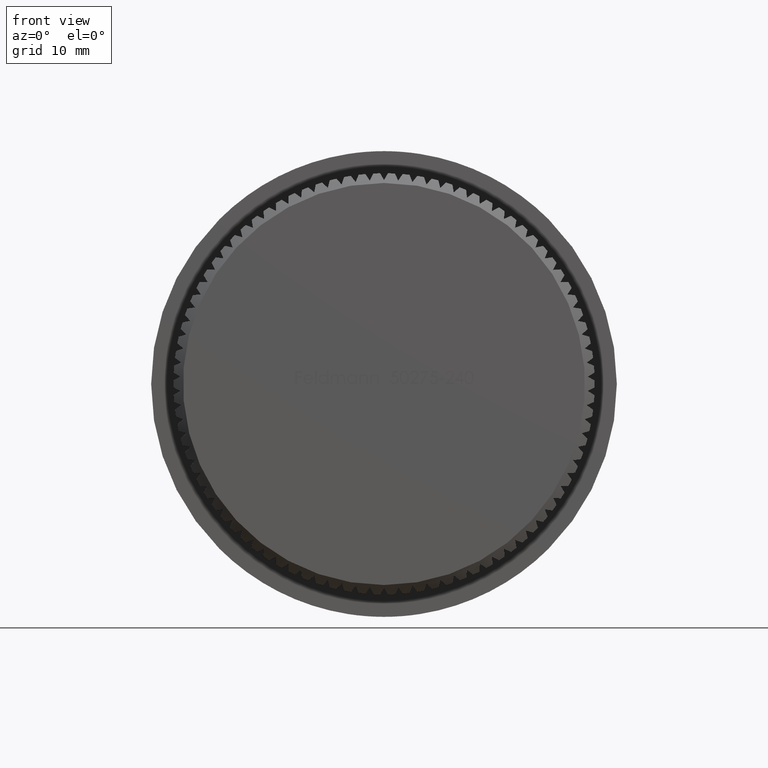
[diagram: clean part render]
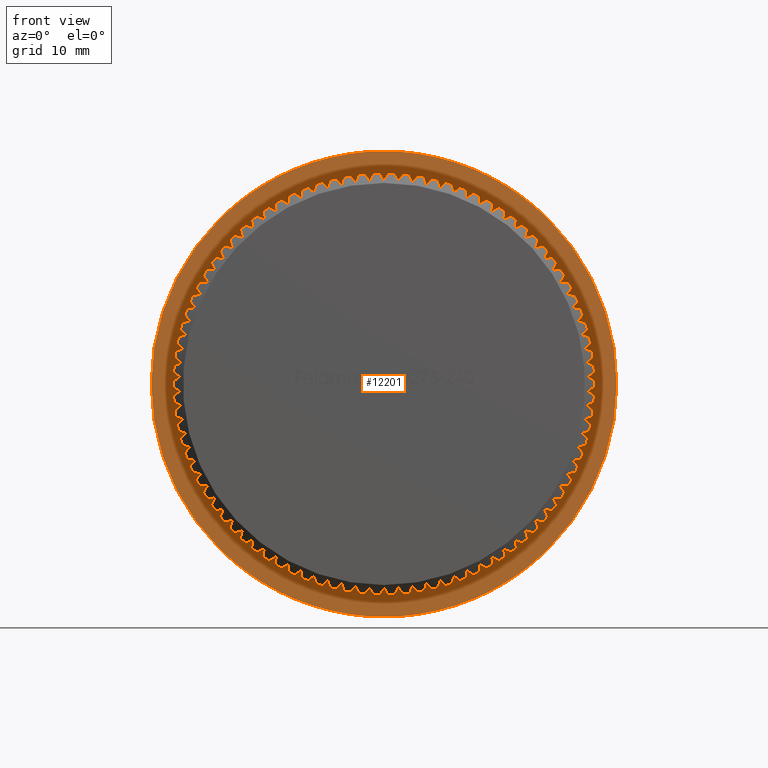
[diagram: same view with one face highlighted and labeled with its STEP entity id]
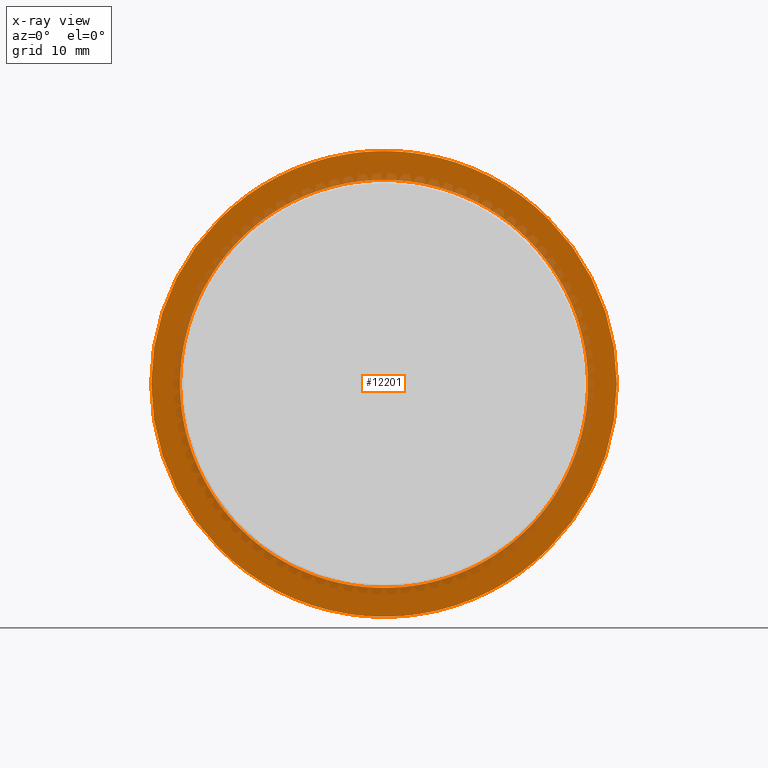
[diagram: x-ray of the same camera — body ghosted, the highlighted face saturated]
A machine part, front view. The second image highlights one B-rep face of the part: STEP entity #12201.
The next image is the same camera in x-ray: the body ghosted, the highlighted face saturated — about 16% of this face is hidden behind the body in this view.
In plain terms, the highlighted planar face has unit normal (0, -1, -0).
Its self-contained STEP definition (entity closure, byte-faithful):
#8 = AXIS2_PLACEMENT_3D ( 'NONE', #21283, #23062, #5296 ) ;
#79 = CARTESIAN_POINT ( 'NONE',  ( 0.0000000000000000000, 11.00000000000000200, 0.0000000000000000000 ) ) ;
#132 = CARTESIAN_POINT ( 'NONE',  ( 0.0000000000000000000, 11.00000000000000200, 0.0000000000000000000 ) ) ;
#233 = DIRECTION ( 'NONE',  ( 0.0000000000000000000, 0.0000000000000000000, -1.000000000000000000 ) ) ;
#237 = AXIS2_PLACEMENT_3D ( 'NONE', #2533, #21884, #16597 ) ;
#308 = DIRECTION ( 'NONE',  ( -0.0000000000000000000, -1.000000000000000000, -0.0000000000000000000 ) ) ;
#386 = CARTESIAN_POINT ( 'NONE',  ( 0.0000000000000000000, 11.00000000000000200, 0.0000000000000000000 ) ) ;
#453 = ORIENTED_EDGE ( 'NONE', *, *, #10683, .F. ) ;
#502 = CARTESIAN_POINT ( 'NONE',  ( -2.943511085305253500, 11.00000000000000200, -20.94416965388423400 ) ) ;
#510 = VERTEX_POINT ( 'NONE', #13037 ) ;
#526 = CARTESIAN_POINT ( 'NONE',  ( 0.0000000000000000000, 11.00000000000000200, 0.0000000000000000000 ) ) ;
#588 = VERTEX_POINT ( 'NONE', #11406 ) ;
#600 = CIRCLE ( 'NONE', #22660, 21.15000000000000200 ) ;
#601 = DIRECTION ( 'NONE',  ( -0.0000000000000000000, -1.000000000000000000, -0.0000000000000000000 ) ) ;
#628 = DIRECTION ( 'NONE',  ( -0.0000000000000000000, -1.000000000000000000, -0.0000000000000000000 ) ) ;
#635 = CIRCLE ( 'NONE', #11341, 21.15000000000000200 ) ;
#681 = AXIS2_PLACEMENT_3D ( 'NONE', #3735, #8964, #9187 ) ;
#712 = DIRECTION ( 'NONE',  ( 0.0000000000000000000, 0.0000000000000000000, -1.000000000000000000 ) ) ;
#718 = DIRECTION ( 'NONE',  ( -0.0000000000000000000, -1.000000000000000000, -0.0000000000000000000 ) ) ;
#821 = CARTESIAN_POINT ( 'NONE',  ( 0.0000000000000000000, 11.00000000000000200, 0.0000000000000000000 ) ) ;
#831 = DIRECTION ( 'NONE',  ( 0.0000000000000000000, 0.0000000000000000000, -1.000000000000000000 ) ) ;
#839 = DIRECTION ( 'NONE',  ( -0.0000000000000000000, -1.000000000000000000, -0.0000000000000000000 ) ) ;
#841 = ORIENTED_EDGE ( 'NONE', *, *, #20702, .F. ) ;
#851 = AXIS2_PLACEMENT_3D ( 'NONE', #4673, #19037, #17169 ) ;
#959 = AXIS2_PLACEMENT_3D ( 'NONE', #4148, #20453, #20528 ) ;
#1015 = CARTESIAN_POINT ( 'NONE',  ( -15.71751305884682300, 11.00000000000000200, -14.15211232448993100 ) ) ;
#1051 = CIRCLE ( 'NONE', #2309, 21.15000000000000200 ) ;
#1104 = CIRCLE ( 'NONE', #11142, 21.15000000000000200 ) ;
#1109 = CARTESIAN_POINT ( 'NONE',  ( 0.0000000000000000000, 11.00000000000000200, 0.0000000000000000000 ) ) ;
#1161 = DIRECTION ( 'NONE',  ( -0.0000000000000000000, -1.000000000000000000, -0.0000000000000000000 ) ) ;
#1228 = CARTESIAN_POINT ( 'NONE',  ( -20.11484531964251900, 11.00000000000000200, 6.535709431030085200 ) ) ;
#1272 = CIRCLE ( 'NONE', #5081, 21.15000000000000200 ) ;
#1318 = VERTEX_POINT ( 'NONE', #6781 ) ;
#1333 = EDGE_CURVE ( 'NONE', #1318, #12422, #12673, .T. ) ;
#1347 = AXIS2_PLACEMENT_3D ( 'NONE', #19456, #16042, #6919 ) ;
#1372 = DIRECTION ( 'NONE',  ( 0.0000000000000000000, 0.0000000000000000000, -1.000000000000000000 ) ) ;
#1377 = VERTEX_POINT ( 'NONE', #21434 ) ;
#1396 = VERTEX_POINT ( 'NONE', #12708 ) ;
#1436 = AXIS2_PLACEMENT_3D ( 'NONE', #6549, #12024, #22754 ) ;
#1446 = VERTEX_POINT ( 'NONE', #19719 ) ;
#1456 = CIRCLE ( 'NONE', #8, 21.15000000000000200 ) ;
#1557 = CARTESIAN_POINT ( 'NONE',  ( 18.31643729004075600, 11.00000000000000200, 10.57500000000021100 ) ) ;
#1646 = CARTESIAN_POINT ( 'NONE',  ( 0.0000000000000000000, 11.00000000000000200, 0.0000000000000000000 ) ) ;
#1747 = EDGE_CURVE ( 'NONE', #9571, #20634, #10157, .T. ) ;
#1826 = CARTESIAN_POINT ( 'NONE',  ( 0.0000000000000000000, 11.00000000000000200, 0.0000000000000000000 ) ) ;
#1850 = ORIENTED_EDGE ( 'NONE', *, *, #5649, .F. ) ;
#1851 = AXIS2_PLACEMENT_3D ( 'NONE', #6183, #8280, #2736 ) ;
#1870 = ORIENTED_EDGE ( 'NONE', *, *, #13161, .F. ) ;
#1913 = EDGE_CURVE ( 'NONE', #3821, #20847, #4547, .T. ) ;
#1937 = AXIS2_PLACEMENT_3D ( 'NONE', #21905, #601, #16466 ) ;
#1953 = DIRECTION ( 'NONE',  ( -0.0000000000000000000, -1.000000000000000000, -0.0000000000000000000 ) ) ;
#1956 = VERTEX_POINT ( 'NONE', #16264 ) ;
#2000 = ORIENTED_EDGE ( 'NONE', *, *, #18844, .F. ) ;
#2106 = CARTESIAN_POINT ( 'NONE',  ( 11.20779243853242900, 11.00000000000000200, -17.93621723370831900 ) ) ;
#2115 = DIRECTION ( 'NONE',  ( 0.0000000000000000000, 0.0000000000000000000, -1.000000000000000000 ) ) ;
#2124 = DIRECTION ( 'NONE',  ( 0.0000000000000000000, 0.0000000000000000000, -1.000000000000000000 ) ) ;
#2153 = ORIENTED_EDGE ( 'NONE', *, *, #11526, .F. ) ;
#2170 = AXIS2_PLACEMENT_3D ( 'NONE', #2364, #22009, #712 ) ;
#2171 = CIRCLE ( 'NONE', #17430, 21.15000000000000200 ) ;
#2185 = CARTESIAN_POINT ( 'NONE',  ( 13.59495794487011700, 11.00000000000000200, 16.20183997196655300 ) ) ;
#2202 = AXIS2_PLACEMENT_3D ( 'NONE', #10007, #4788, #17269 ) ;
#2260 = CARTESIAN_POINT ( 'NONE',  ( -16.66642743878219700, 11.00000000000000200, 13.02124020313764800 ) ) ;
#2267 = CARTESIAN_POINT ( 'NONE',  ( 24.14999999999999900, 11.00000000000000400, 0.0000000000000000000 ) ) ;
#2272 = DIRECTION ( 'NONE',  ( 0.0000000000000000000, 0.0000000000000000000, -1.000000000000000000 ) ) ;
#2275 = CIRCLE ( 'NONE', #237, 21.15000000000000200 ) ;
#2280 = DIRECTION ( 'NONE',  ( 0.0000000000000000000, 0.0000000000000000000, -1.000000000000000000 ) ) ;
#2286 = AXIS2_PLACEMENT_3D ( 'NONE', #12738, #13032, #831 ) ;
#2309 = AXIS2_PLACEMENT_3D ( 'NONE', #6636, #10383, #15610 ) ;
#2320 = EDGE_CURVE ( 'NONE', #9235, #13061, #21294, .T. ) ;
#2342 = VERTEX_POINT ( 'NONE', #2260 ) ;
#2345 = EDGE_CURVE ( 'NONE', #18960, #3846, #16555, .T. ) ;
#2364 = CARTESIAN_POINT ( 'NONE',  ( 0.0000000000000000000, 11.00000000000000200, 0.0000000000000000000 ) ) ;
#2367 = ORIENTED_EDGE ( 'NONE', *, *, #20092, .F. ) ;
#2370 = CARTESIAN_POINT ( 'NONE',  ( 0.0000000000000000000, 11.00000000000000200, 0.0000000000000000000 ) ) ;
#2390 = CARTESIAN_POINT ( 'NONE',  ( 0.0000000000000000000, 11.00000000000000200, 0.0000000000000000000 ) ) ;
#2436 = AXIS2_PLACEMENT_3D ( 'NONE', #1826, #17670, #8767 ) ;
#2466 = CARTESIAN_POINT ( 'NONE',  ( 20.11484531964243400, 11.00000000000000200, 6.535709431030350700 ) ) ;
#2495 = AXIS2_PLACEMENT_3D ( 'NONE', #19409, #17704, #10368 ) ;
#2529 = CARTESIAN_POINT ( 'NONE',  ( -1.475349419688104500, 11.00000000000000200, -21.09847966299530200 ) ) ;
#2533 = CARTESIAN_POINT ( 'NONE',  ( 0.0000000000000000000, 11.00000000000000200, 0.0000000000000000000 ) ) ;
#2623 = ORIENTED_EDGE ( 'NONE', *, *, #9884, .F. ) ;
#2646 = ORIENTED_EDGE ( 'NONE', *, *, #4862, .F. ) ;
#2647 = EDGE_CURVE ( 'NONE', #15366, #15923, #4828, .T. ) ;
#2711 = ORIENTED_EDGE ( 'NONE', *, *, #22575, .F. ) ;
#2721 = DIRECTION ( 'NONE',  ( 0.0000000000000000000, 0.0000000000000000000, -1.000000000000000000 ) ) ;
#2726 = AXIS2_PLACEMENT_3D ( 'NONE', #16467, #7505, #11027 ) ;
#2734 = DIRECTION ( 'NONE',  ( -0.0000000000000000000, -1.000000000000000000, -0.0000000000000000000 ) ) ;
#2736 = DIRECTION ( 'NONE',  ( 0.0000000000000000000, 0.0000000000000000000, -1.000000000000000000 ) ) ;
#2755 = ORIENTED_EDGE ( 'NONE', *, *, #11845, .F. ) ;
#2756 = CARTESIAN_POINT ( 'NONE',  ( 13.59495794487044600, 11.00000000000000200, -16.20183997196627200 ) ) ;
#2766 = ORIENTED_EDGE ( 'NONE', *, *, #11219, .F. ) ;
#2790 = CARTESIAN_POINT ( 'NONE',  ( -18.31643729004090200, 11.00000000000000200, 10.57499999999996000 ) ) ;
#2835 = ORIENTED_EDGE ( 'NONE', *, *, #11600, .F. ) ;
#2881 = CARTESIAN_POINT ( 'NONE',  ( 16.66642743878201900, 11.00000000000000200, 13.02124020313787200 ) ) ;
#2893 = CIRCLE ( 'NONE', #4910, 21.15000000000000200 ) ;
#2913 = EDGE_CURVE ( 'NONE', #20365, #13757, #3962, .T. ) ;
#2955 = CARTESIAN_POINT ( 'NONE',  ( 0.0000000000000000000, 11.00000000000000200, 0.0000000000000000000 ) ) ;
#2956 = CARTESIAN_POINT ( 'NONE',  ( -5.829730075529408100, 11.00000000000000200, -20.33068486909548500 ) ) ;
#2970 = EDGE_CURVE ( 'NONE', #14553, #10135, #1456, .T. ) ;
#2977 = CARTESIAN_POINT ( 'NONE',  ( 0.0000000000000000000, 11.00000000000000200, 0.0000000000000000000 ) ) ;
#3022 = CARTESIAN_POINT ( 'NONE',  ( 20.11484531964256200, 11.00000000000000200, -6.535709431029944800 ) ) ;
#3041 = CARTESIAN_POINT ( 'NONE',  ( 0.0000000000000000000, 11.00000000000000200, 0.0000000000000000000 ) ) ;
#3073 = DIRECTION ( 'NONE',  ( 0.0000000000000000000, 0.0000000000000000000, -1.000000000000000000 ) ) ;
#3090 = DIRECTION ( 'NONE',  ( 0.0000000000000000000, 0.0000000000000000000, -1.000000000000000000 ) ) ;
#3239 = CARTESIAN_POINT ( 'NONE',  ( -20.11484531964247000, 11.00000000000000200, -6.535709431030220200 ) ) ;
#3255 = DIRECTION ( 'NONE',  ( 0.0000000000000000000, 0.0000000000000000000, -1.000000000000000000 ) ) ;
#3329 = CARTESIAN_POINT ( 'NONE',  ( 0.0000000000000000000, 11.00000000000000200, 0.0000000000000000000 ) ) ;
#3415 = CARTESIAN_POINT ( 'NONE',  ( 0.0000000000000000000, 11.00000000000000200, 0.0000000000000000000 ) ) ;
#3441 = CARTESIAN_POINT ( 'NONE',  ( -20.52175461073733900, 11.00000000000000200, 5.116648091932914300 ) ) ;
#3474 = CARTESIAN_POINT ( 'NONE',  ( -15.71751305884691500, 11.00000000000000200, 14.15211232448982900 ) ) ;
#3501 = VERTEX_POINT ( 'NONE', #10695 ) ;
#3535 = CARTESIAN_POINT ( 'NONE',  ( 20.82868397620823900, 11.00000000000000200, -3.672658957655375600 ) ) ;
#3541 = CIRCLE ( 'NONE', #4571, 21.15000000000000200 ) ;
#3543 = CIRCLE ( 'NONE', #6070, 21.15000000000000200 ) ;
#3565 = DIRECTION ( 'NONE',  ( 0.0000000000000000000, 0.0000000000000000000, -1.000000000000000000 ) ) ;
#3582 = VERTEX_POINT ( 'NONE', #19872 ) ;
#3638 = CIRCLE ( 'NONE', #12521, 21.15000000000000200 ) ;
#3650 = AXIS2_PLACEMENT_3D ( 'NONE', #20140, #11043, #16482 ) ;
#3672 = DIRECTION ( 'NONE',  ( 0.0000000000000000000, 0.0000000000000000000, -1.000000000000000000 ) ) ;
#3735 = CARTESIAN_POINT ( 'NONE',  ( 0.0000000000000000000, 11.00000000000000200, 0.0000000000000000000 ) ) ;
#3737 = EDGE_CURVE ( 'NONE', #11858, #10972, #16251, .T. ) ;
#3810 = DIRECTION ( 'NONE',  ( -0.0000000000000000000, -1.000000000000000000, -0.0000000000000000000 ) ) ;
#3819 = CARTESIAN_POINT ( 'NONE',  ( 0.0000000000000000000, 11.00000000000000200, 0.0000000000000000000 ) ) ;
#3821 = VERTEX_POINT ( 'NONE', #17578 ) ;
#3846 = VERTEX_POINT ( 'NONE', #10564 ) ;
#3929 = CARTESIAN_POINT ( 'NONE',  ( 0.0000000000000000000, 11.00000000000000200, 0.0000000000000000000 ) ) ;
#3934 = CIRCLE ( 'NONE', #6554, 21.15000000000000200 ) ;
#3947 = AXIS2_PLACEMENT_3D ( 'NONE', #9377, #19985, #233 ) ;
#3951 = CIRCLE ( 'NONE', #6277, 21.15000000000000200 ) ;
#3962 = CIRCLE ( 'NONE', #18296, 21.15000000000000200 ) ;
#3973 = CARTESIAN_POINT ( 'NONE',  ( 19.00949407922747300, 11.00000000000000200, -9.271549754588813000 ) ) ;
#3979 = AXIS2_PLACEMENT_3D ( 'NONE', #18372, #628, #20231 ) ;
#3989 = EDGE_CURVE ( 'NONE', #10135, #15036, #19576, .T. ) ;
#4003 = DIRECTION ( 'NONE',  ( 0.0000000000000000000, 0.0000000000000000000, -1.000000000000000000 ) ) ;
#4004 = DIRECTION ( 'NONE',  ( 0.0000000000000000000, 0.0000000000000000000, -1.000000000000000000 ) ) ;
#4056 = DIRECTION ( 'NONE',  ( -0.0000000000000000000, -1.000000000000000000, -0.0000000000000000000 ) ) ;
#4062 = EDGE_CURVE ( 'NONE', #17203, #14292, #11210, .T. ) ;
#4085 = CARTESIAN_POINT ( 'NONE',  ( 7.233726031337647000, 11.00000000000000200, 19.87449892962205300 ) ) ;
#4088 = ORIENTED_EDGE ( 'NONE', *, *, #16448, .F. ) ;
#4091 = DIRECTION ( 'NONE',  ( 0.0000000000000000000, 0.0000000000000000000, -1.000000000000000000 ) ) ;
#4106 = ORIENTED_EDGE ( 'NONE', *, *, #23046, .F. ) ;
#4135 = DIRECTION ( 'NONE',  ( 0.0000000000000000000, 0.0000000000000000000, -1.000000000000000000 ) ) ;
#4148 = CARTESIAN_POINT ( 'NONE',  ( 0.0000000000000000000, 11.00000000000000200, 0.0000000000000000000 ) ) ;
#4171 = VERTEX_POINT ( 'NONE', #10145 ) ;
#4188 = CARTESIAN_POINT ( 'NONE',  ( 19.00949407922728100, 11.00000000000000200, 9.271549754589210900 ) ) ;
#4223 = ORIENTED_EDGE ( 'NONE', *, *, #11838, .F. ) ;
#4245 = CIRCLE ( 'NONE', #16265, 21.15000000000000200 ) ;
#4290 = AXIS2_PLACEMENT_3D ( 'NONE', #17322, #21063, #10378 ) ;
#4299 = DIRECTION ( 'NONE',  ( 0.0000000000000000000, 0.0000000000000000000, -1.000000000000000000 ) ) ;
#4358 = CARTESIAN_POINT ( 'NONE',  ( 0.0000000000000000000, 11.00000000000000200, 0.0000000000000000000 ) ) ;
#4437 = DIRECTION ( 'NONE',  ( -0.0000000000000000000, -1.000000000000000000, -0.0000000000000000000 ) ) ;
#4451 = CARTESIAN_POINT ( 'NONE',  ( 0.0000000000000000000, 11.00000000000000200, 0.0000000000000000000 ) ) ;
#4487 = CIRCLE ( 'NONE', #16141, 21.15000000000000200 ) ;
#4514 = CARTESIAN_POINT ( 'NONE',  ( -4.397332260795621100, 11.00000000000000200, 20.68782175551998700 ) ) ;
#4517 = DIRECTION ( 'NONE',  ( 0.0000000000000000000, 0.0000000000000000000, -1.000000000000000000 ) ) ;
#4547 = CIRCLE ( 'NONE', #15730, 21.15000000000000200 ) ;
#4571 = AXIS2_PLACEMENT_3D ( 'NONE', #4773, #18973, #8122 ) ;
#4578 = CARTESIAN_POINT ( 'NONE',  ( 19.60993852408746800, 11.00000000000000200, 7.922929450746765100 ) ) ;
#4631 = ORIENTED_EDGE ( 'NONE', *, *, #19659, .F. ) ;
#4645 = DIRECTION ( 'NONE',  ( -0.0000000000000000000, -1.000000000000000000, -0.0000000000000000000 ) ) ;
#4673 = CARTESIAN_POINT ( 'NONE',  ( 0.0000000000000000000, 11.00000000000000200, 0.0000000000000000000 ) ) ;
#4705 = AXIS2_PLACEMENT_3D ( 'NONE', #3329, #21271, #3565 ) ;
#4706 = ORIENTED_EDGE ( 'NONE', *, *, #16160, .F. ) ;
#4712 = CARTESIAN_POINT ( 'NONE',  ( 0.0000000000000000000, 11.00000000000000200, 0.0000000000000000000 ) ) ;
#4720 = DIRECTION ( 'NONE',  ( -0.0000000000000000000, -1.000000000000000000, -0.0000000000000000000 ) ) ;
#4724 = CARTESIAN_POINT ( 'NONE',  ( 19.60993852408763200, 11.00000000000000200, -7.922929450746357500 ) ) ;
#4728 = CARTESIAN_POINT ( 'NONE',  ( 0.0000000000000000000, 11.00000000000000200, 0.0000000000000000000 ) ) ;
#4761 = CARTESIAN_POINT ( 'NONE',  ( -9.929323552921486500, 11.00000000000000200, -18.67434158896636700 ) ) ;
#4767 = VERTEX_POINT ( 'NONE', #13120 ) ;
#4773 = CARTESIAN_POINT ( 'NONE',  ( 0.0000000000000000000, 11.00000000000000200, 0.0000000000000000000 ) ) ;
#4776 = CARTESIAN_POINT ( 'NONE',  ( 0.0000000000000000000, 11.00000000000000200, 0.0000000000000000000 ) ) ;
#4788 = DIRECTION ( 'NONE',  ( -0.0000000000000000000, -1.000000000000000000, -0.0000000000000000000 ) ) ;
#4828 = CIRCLE ( 'NONE', #21854, 21.15000000000000200 ) ;
#4854 = ORIENTED_EDGE ( 'NONE', *, *, #15796, .F. ) ;
#4862 = EDGE_CURVE ( 'NONE', #14292, #13020, #13996, .T. ) ;
#4866 = VERTEX_POINT ( 'NONE', #4761 ) ;
#4888 = CIRCLE ( 'NONE', #3979, 21.15000000000000200 ) ;
#4890 = EDGE_CURVE ( 'NONE', #19672, #22132, #12870, .T. ) ;
#4910 = AXIS2_PLACEMENT_3D ( 'NONE', #18666, #22145, #11649 ) ;
#4959 = AXIS2_PLACEMENT_3D ( 'NONE', #4712, #10105, #3073 ) ;
#4981 = DIRECTION ( 'NONE',  ( -0.0000000000000000000, -1.000000000000000000, -0.0000000000000000000 ) ) ;
#5081 = AXIS2_PLACEMENT_3D ( 'NONE', #12758, #21709, #16490 ) ;
#5083 = CIRCLE ( 'NONE', #8218, 21.15000000000000200 ) ;
#5108 = CARTESIAN_POINT ( 'NONE',  ( -17.53414465953916200, 11.00000000000000200, 11.82692990840626000 ) ) ;
#5116 = VERTEX_POINT ( 'NONE', #10707 ) ;
#5177 = CARTESIAN_POINT ( 'NONE',  ( -7.233726031337911700, 11.00000000000000200, 19.87449892962196100 ) ) ;
#5264 = DIRECTION ( 'NONE',  ( -0.0000000000000000000, -1.000000000000000000, -0.0000000000000000000 ) ) ;
#5283 = CIRCLE ( 'NONE', #9943, 21.15000000000000200 ) ;
#5296 = DIRECTION ( 'NONE',  ( 0.0000000000000000000, 0.0000000000000000000, -1.000000000000000000 ) ) ;
#5308 = ORIENTED_EDGE ( 'NONE', *, *, #5955, .F. ) ;
#5316 = CARTESIAN_POINT ( 'NONE',  ( 21.03413808703896100, 11.00000000000000200, 2.210776998111082700 ) ) ;
#5339 = AXIS2_PLACEMENT_3D ( 'NONE', #4451, #2734, #15384 ) ;
#5402 = CARTESIAN_POINT ( 'NONE',  ( 0.0000000000000000000, 11.00000000000000200, 0.0000000000000000000 ) ) ;
#5418 = CIRCLE ( 'NONE', #15683, 21.15000000000000200 ) ;
#5446 = EDGE_CURVE ( 'NONE', #20923, #21650, #17074, .T. ) ;
#5448 = AXIS2_PLACEMENT_3D ( 'NONE', #8150, #13388, #20626 ) ;
#5450 = AXIS2_PLACEMENT_3D ( 'NONE', #10887, #11261, #4299 ) ;
#5472 = VERTEX_POINT ( 'NONE', #17453 ) ;
#5508 = VERTEX_POINT ( 'NONE', #3239 ) ;
#5603 = DIRECTION ( 'NONE',  ( 0.0000000000000000000, 0.0000000000000000000, -1.000000000000000000 ) ) ;
#5615 = AXIS2_PLACEMENT_3D ( 'NONE', #821, #13412, #9897 ) ;
#5649 = EDGE_CURVE ( 'NONE', #15036, #17727, #19022, .T. ) ;
#5650 = DIRECTION ( 'NONE',  ( -0.0000000000000000000, -1.000000000000000000, -0.0000000000000000000 ) ) ;
#5738 = DIRECTION ( 'NONE',  ( -0.0000000000000000000, -1.000000000000000000, -0.0000000000000000000 ) ) ;
#5830 = ORIENTED_EDGE ( 'NONE', *, *, #17990, .F. ) ;
#5831 = AXIS2_PLACEMENT_3D ( 'NONE', #4358, #20441, #6021 ) ;
#5838 = DIRECTION ( 'NONE',  ( -0.0000000000000000000, -1.000000000000000000, -0.0000000000000000000 ) ) ;
#5868 = DIRECTION ( 'NONE',  ( -0.0000000000000000000, -1.000000000000000000, -0.0000000000000000000 ) ) ;
#5909 = AXIS2_PLACEMENT_3D ( 'NONE', #16058, #10517, #12398 ) ;
#5955 = EDGE_CURVE ( 'NONE', #17728, #4171, #13435, .T. ) ;
#5982 = DIRECTION ( 'NONE',  ( 0.0000000000000000000, 0.0000000000000000000, -1.000000000000000000 ) ) ;
#6021 = DIRECTION ( 'NONE',  ( 0.0000000000000000000, 0.0000000000000000000, -1.000000000000000000 ) ) ;
#6039 = DIRECTION ( 'NONE',  ( -0.0000000000000000000, -1.000000000000000000, -0.0000000000000000000 ) ) ;
#6054 = VERTEX_POINT ( 'NONE', #12151 ) ;
#6070 = AXIS2_PLACEMENT_3D ( 'NONE', #4728, #8395, #3090 ) ;
#6092 = DIRECTION ( 'NONE',  ( 0.0000000000000000000, 0.0000000000000000000, -1.000000000000000000 ) ) ;
#6104 = CIRCLE ( 'NONE', #12924, 21.15000000000000200 ) ;
#6128 = VERTEX_POINT ( 'NONE', #3474 ) ;
#6183 = CARTESIAN_POINT ( 'NONE',  ( 0.0000000000000000000, 11.00000000000000200, 0.0000000000000000000 ) ) ;
#6205 = CARTESIAN_POINT ( 'NONE',  ( 0.0000000000000000000, 11.00000000000000200, 0.0000000000000000000 ) ) ;
#6220 = CARTESIAN_POINT ( 'NONE',  ( 0.0000000000000000000, 11.00000000000000200, 0.0000000000000000000 ) ) ;
#6233 = CARTESIAN_POINT ( 'NONE',  ( 0.0000000000000000000, 11.00000000000000200, 0.0000000000000000000 ) ) ;
#6277 = AXIS2_PLACEMENT_3D ( 'NONE', #12595, #17664, #19682 ) ;
#6406 = FACE_OUTER_BOUND ( 'NONE', #7837, .T. ) ;
#6497 = EDGE_CURVE ( 'NONE', #18263, #13983, #21756, .T. ) ;
#6513 = DIRECTION ( 'NONE',  ( -0.0000000000000000000, -1.000000000000000000, -0.0000000000000000000 ) ) ;
#6549 = CARTESIAN_POINT ( 'NONE',  ( 0.0000000000000000000, 11.00000000000000200, 0.0000000000000000000 ) ) ;
#6554 = AXIS2_PLACEMENT_3D ( 'NONE', #6731, #20995, #17343 ) ;
#6555 = DIRECTION ( 'NONE',  ( 0.0000000000000000000, 0.0000000000000000000, -1.000000000000000000 ) ) ;
#6636 = CARTESIAN_POINT ( 'NONE',  ( 0.0000000000000000000, 11.00000000000000200, 0.0000000000000000000 ) ) ;
#6645 = CIRCLE ( 'NONE', #22776, 21.15000000000000200 ) ;
#6683 = CARTESIAN_POINT ( 'NONE',  ( 2.943511085305096800, 11.00000000000000200, 20.94416965388425600 ) ) ;
#6731 = CARTESIAN_POINT ( 'NONE',  ( 0.0000000000000000000, 11.00000000000000200, 0.0000000000000000000 ) ) ;
#6781 = CARTESIAN_POINT ( 'NONE',  ( 14.69202453520760800, 11.00000000000000200, 15.21403677716265100 ) ) ;
#6840 = AXIS2_PLACEMENT_3D ( 'NONE', #18020, #14429, #10856 ) ;
#6844 = CARTESIAN_POINT ( 'NONE',  ( 0.0000000000000000000, 11.00000000000000400, 0.0000000000000000000 ) ) ;
#6908 = ORIENTED_EDGE ( 'NONE', *, *, #20329, .F. ) ;
#6909 = ORIENTED_EDGE ( 'NONE', *, *, #9813, .F. ) ;
#6919 = DIRECTION ( 'NONE',  ( 0.0000000000000000000, 0.0000000000000000000, -1.000000000000000000 ) ) ;
#7005 = CARTESIAN_POINT ( 'NONE',  ( 0.0000000000000000000, 11.00000000000000200, 0.0000000000000000000 ) ) ;
#7112 = CARTESIAN_POINT ( 'NONE',  ( -20.52175461073731100, 11.00000000000000200, -5.116648091933053700 ) ) ;
#7125 = CIRCLE ( 'NONE', #22971, 21.15000000000000200 ) ;
#7128 = ORIENTED_EDGE ( 'NONE', *, *, #9195, .F. ) ;
#7152 = AXIS2_PLACEMENT_3D ( 'NONE', #18929, #4720, #15255 ) ;
#7153 = DIRECTION ( 'NONE',  ( 0.0000000000000000000, 0.0000000000000000000, -1.000000000000000000 ) ) ;
#7173 = CARTESIAN_POINT ( 'NONE',  ( 0.0000000000000000000, 11.00000000000000200, 0.0000000000000000000 ) ) ;
#7201 = VERTEX_POINT ( 'NONE', #8743 ) ;
#7217 = ORIENTED_EDGE ( 'NONE', *, *, #11062, .F. ) ;
#7255 = AXIS2_PLACEMENT_3D ( 'NONE', #11675, #18848, #20622 ) ;
#7268 = CARTESIAN_POINT ( 'NONE',  ( 0.0000000000000000000, 11.00000000000000200, 0.0000000000000000000 ) ) ;
#7269 = ORIENTED_EDGE ( 'NONE', *, *, #12090, .F. ) ;
#7270 = EDGE_CURVE ( 'NONE', #1377, #14753, #13677, .T. ) ;
#7273 = CARTESIAN_POINT ( 'NONE',  ( 15.71751305884700900, 11.00000000000000200, -14.15211232448972100 ) ) ;
#7465 = EDGE_CURVE ( 'NONE', #17387, #10510, #15341, .T. ) ;
#7505 = DIRECTION ( 'NONE',  ( -0.0000000000000000000, -1.000000000000000000, -0.0000000000000000000 ) ) ;
#7572 = CIRCLE ( 'NONE', #22831, 21.15000000000000200 ) ;
#7583 = AXIS2_PLACEMENT_3D ( 'NONE', #13482, #11758, #8155 ) ;
#7591 = VERTEX_POINT ( 'NONE', #3022 ) ;
#7667 = CARTESIAN_POINT ( 'NONE',  ( 0.0000000000000000000, 11.00000000000000200, 0.0000000000000000000 ) ) ;
#7685 = ORIENTED_EDGE ( 'NONE', *, *, #22494, .F. ) ;
#7716 = CARTESIAN_POINT ( 'NONE',  ( -12.43165808598583100, 11.00000000000000200, 17.11070943103012400 ) ) ;
#7747 = VERTEX_POINT ( 'NONE', #21538 ) ;
#7757 = ORIENTED_EDGE ( 'NONE', *, *, #17223, .F. ) ;
#7766 = ORIENTED_EDGE ( 'NONE', *, *, #8037, .F. ) ;
#7775 = VERTEX_POINT ( 'NONE', #5316 ) ;
#7785 = ORIENTED_EDGE ( 'NONE', *, *, #1913, .F. ) ;
#7803 = EDGE_CURVE ( 'NONE', #21818, #22804, #6104, .T. ) ;
#7804 = CIRCLE ( 'NONE', #5909, 21.15000000000000200 ) ;
#7837 = EDGE_LOOP ( 'NONE', ( #10989, #16581 ) ) ;
#7844 = CARTESIAN_POINT ( 'NONE',  ( 0.0000000000000000000, 11.00000000000000200, 0.0000000000000000000 ) ) ;
#7863 = ORIENTED_EDGE ( 'NONE', *, *, #20029, .F. ) ;
#7879 = DIRECTION ( 'NONE',  ( 0.0000000000000000000, 0.0000000000000000000, -1.000000000000000000 ) ) ;
#7958 = CARTESIAN_POINT ( 'NONE',  ( -20.82868397620821500, 11.00000000000000200, 3.672658957655513800 ) ) ;
#8028 = EDGE_CURVE ( 'NONE', #18160, #11442, #17571, .T. ) ;
#8037 = EDGE_CURVE ( 'NONE', #13141, #14388, #19504, .T. ) ;
#8100 = VERTEX_POINT ( 'NONE', #17385 ) ;
#8111 = ORIENTED_EDGE ( 'NONE', *, *, #2647, .F. ) ;
#8122 = DIRECTION ( 'NONE',  ( 0.0000000000000000000, 0.0000000000000000000, -1.000000000000000000 ) ) ;
#8150 = CARTESIAN_POINT ( 'NONE',  ( 0.0000000000000000000, 11.00000000000000200, 0.0000000000000000000 ) ) ;
#8155 = DIRECTION ( 'NONE',  ( 0.0000000000000000000, 0.0000000000000000000, -1.000000000000000000 ) ) ;
#8156 = ORIENTED_EDGE ( 'NONE', *, *, #11430, .F. ) ;
#8163 = EDGE_CURVE ( 'NONE', #14753, #20365, #8904, .T. ) ;
#8166 = EDGE_CURVE ( 'NONE', #21650, #7201, #5283, .T. ) ;
#8218 = AXIS2_PLACEMENT_3D ( 'NONE', #21910, #20206, #4135 ) ;
#8260 = CARTESIAN_POINT ( 'NONE',  ( 9.929323552921737000, 11.00000000000000200, -18.67434158896622900 ) ) ;
#8280 = DIRECTION ( 'NONE',  ( -0.0000000000000000000, -1.000000000000000000, -0.0000000000000000000 ) ) ;
#8359 = DIRECTION ( 'NONE',  ( 0.0000000000000000000, 0.0000000000000000000, -1.000000000000000000 ) ) ;
#8369 = CIRCLE ( 'NONE', #7255, 21.15000000000000200 ) ;
#8385 = CIRCLE ( 'NONE', #13148, 21.15000000000000200 ) ;
#8395 = DIRECTION ( 'NONE',  ( -0.0000000000000000000, -1.000000000000000000, -0.0000000000000000000 ) ) ;
#8412 = CIRCLE ( 'NONE', #2495, 21.15000000000000200 ) ;
#8425 = VERTEX_POINT ( 'NONE', #4085 ) ;
#8448 = ORIENTED_EDGE ( 'NONE', *, *, #11559, .F. ) ;
#8464 = AXIS2_PLACEMENT_3D ( 'NONE', #10558, #14454, #10630 ) ;
#8710 = CIRCLE ( 'NONE', #13466, 24.14999999999999900 ) ;
#8743 = CARTESIAN_POINT ( 'NONE',  ( 12.43165808598595000, 11.00000000000000200, -17.11070943103003500 ) ) ;
#8764 = CIRCLE ( 'NONE', #12547, 21.15000000000000200 ) ;
#8767 = DIRECTION ( 'NONE',  ( 0.0000000000000000000, 0.0000000000000000000, -1.000000000000000000 ) ) ;
#8776 = VERTEX_POINT ( 'NONE', #2466 ) ;
#8778 = CARTESIAN_POINT ( 'NONE',  ( -19.00949407922734100, 11.00000000000000200, -9.271549754589075900 ) ) ;
#8784 = CIRCLE ( 'NONE', #17291, 21.15000000000000200 ) ;
#8788 = DIRECTION ( 'NONE',  ( 0.0000000000000000000, 0.0000000000000000000, -1.000000000000000000 ) ) ;
#8816 = VERTEX_POINT ( 'NONE', #18570 ) ;
#8844 = DIRECTION ( 'NONE',  ( -0.0000000000000000000, -1.000000000000000000, -0.0000000000000000000 ) ) ;
#8900 = VERTEX_POINT ( 'NONE', #20112 ) ;
#8904 = CIRCLE ( 'NONE', #4705, 21.15000000000000200 ) ;
#8919 = AXIS2_PLACEMENT_3D ( 'NONE', #1646, #1953, #4091 ) ;
#8936 = DIRECTION ( 'NONE',  ( 0.0000000000000000000, 0.0000000000000000000, -1.000000000000000000 ) ) ;
#8964 = DIRECTION ( 'NONE',  ( -0.0000000000000000000, -1.000000000000000000, -0.0000000000000000000 ) ) ;
#8979 = DIRECTION ( 'NONE',  ( 0.0000000000000000000, 0.0000000000000000000, -1.000000000000000000 ) ) ;
#8981 = DIRECTION ( 'NONE',  ( -0.0000000000000000000, -1.000000000000000000, -0.0000000000000000000 ) ) ;
#9021 = VERTEX_POINT ( 'NONE', #10694 ) ;
#9038 = CIRCLE ( 'NONE', #19261, 21.15000000000000200 ) ;
#9097 = CIRCLE ( 'NONE', #7152, 21.15000000000000200 ) ;
#9149 = PLANE ( 'NONE',  #3947 ) ;
#9187 = DIRECTION ( 'NONE',  ( 0.0000000000000000000, 0.0000000000000000000, -1.000000000000000000 ) ) ;
#9195 = EDGE_CURVE ( 'NONE', #15923, #15874, #6645, .T. ) ;
#9196 = ORIENTED_EDGE ( 'NONE', *, *, #11668, .F. ) ;
#9219 = VERTEX_POINT ( 'NONE', #14351 ) ;
#9235 = VERTEX_POINT ( 'NONE', #18089 ) ;
#9280 = ORIENTED_EDGE ( 'NONE', *, *, #13296, .F. ) ;
#9343 = CIRCLE ( 'NONE', #2202, 21.15000000000000200 ) ;
#9377 = CARTESIAN_POINT ( 'NONE',  ( 24.14999999999999900, 11.00000000000000400, 0.0000000000000000000 ) ) ;
#9428 = EDGE_CURVE ( 'NONE', #5472, #1377, #22794, .T. ) ;
#9449 = DIRECTION ( 'NONE',  ( 0.0000000000000000000, 0.0000000000000000000, -1.000000000000000000 ) ) ;
#9462 = AXIS2_PLACEMENT_3D ( 'NONE', #526, #14837, #4517 ) ;
#9530 = ORIENTED_EDGE ( 'NONE', *, *, #19153, .F. ) ;
#9571 = VERTEX_POINT ( 'NONE', #5108 ) ;
#9629 = AXIS2_PLACEMENT_3D ( 'NONE', #16262, #5650, #12749 ) ;
#9641 = EDGE_CURVE ( 'NONE', #16544, #510, #18357, .T. ) ;
#9654 = ORIENTED_EDGE ( 'NONE', *, *, #14131, .F. ) ;
#9713 = ORIENTED_EDGE ( 'NONE', *, *, #17052, .F. ) ;
#9739 = DIRECTION ( 'NONE',  ( -0.0000000000000000000, -1.000000000000000000, -0.0000000000000000000 ) ) ;
#9813 = EDGE_CURVE ( 'NONE', #9021, #16560, #18061, .T. ) ;
#9829 = CIRCLE ( 'NONE', #12275, 21.15000000000000200 ) ;
#9834 = AXIS2_PLACEMENT_3D ( 'NONE', #18814, #4437, #2721 ) ;
#9884 = EDGE_CURVE ( 'NONE', #8100, #20027, #3541, .T. ) ;
#9893 = CARTESIAN_POINT ( 'NONE',  ( -14.69202453520772000, 11.00000000000000200, -15.21403677716254600 ) ) ;
#9897 = DIRECTION ( 'NONE',  ( 0.0000000000000000000, 0.0000000000000000000, -1.000000000000000000 ) ) ;
#9921 = VERTEX_POINT ( 'NONE', #22295 ) ;
#9935 = CARTESIAN_POINT ( 'NONE',  ( 0.0000000000000000000, 11.00000000000000200, 0.0000000000000000000 ) ) ;
#9943 = AXIS2_PLACEMENT_3D ( 'NONE', #3415, #15903, #3255 ) ;
#9950 = ORIENTED_EDGE ( 'NONE', *, *, #19237, .F. ) ;
#9989 = DIRECTION ( 'NONE',  ( 0.0000000000000000000, 0.0000000000000000000, -1.000000000000000000 ) ) ;
#10007 = CARTESIAN_POINT ( 'NONE',  ( 0.0000000000000000000, 11.00000000000000200, 0.0000000000000000000 ) ) ;
#10065 = VERTEX_POINT ( 'NONE', #3441 ) ;
#10105 = DIRECTION ( 'NONE',  ( -0.0000000000000000000, -1.000000000000000000, -0.0000000000000000000 ) ) ;
#10135 = VERTEX_POINT ( 'NONE', #1557 ) ;
#10145 = CARTESIAN_POINT ( 'NONE',  ( -4.397332260795483400, 11.00000000000000200, -20.68782175552001900 ) ) ;
#10150 = CIRCLE ( 'NONE', #13112, 21.15000000000000200 ) ;
#10157 = CIRCLE ( 'NONE', #4959, 21.15000000000000200 ) ;
#10251 = DIRECTION ( 'NONE',  ( -0.0000000000000000000, -1.000000000000000000, -0.0000000000000000000 ) ) ;
#10332 = CIRCLE ( 'NONE', #3650, 21.15000000000000200 ) ;
#10345 = VERTEX_POINT ( 'NONE', #7958 ) ;
#10363 = EDGE_CURVE ( 'NONE', #8776, #14663, #19154, .T. ) ;
#10368 = DIRECTION ( 'NONE',  ( 0.0000000000000000000, 0.0000000000000000000, -1.000000000000000000 ) ) ;
#10378 = DIRECTION ( 'NONE',  ( 0.0000000000000000000, 0.0000000000000000000, -1.000000000000000000 ) ) ;
#10383 = DIRECTION ( 'NONE',  ( -0.0000000000000000000, -1.000000000000000000, -0.0000000000000000000 ) ) ;
#10510 = VERTEX_POINT ( 'NONE', #1228 ) ;
#10517 = DIRECTION ( 'NONE',  ( -0.0000000000000000000, -1.000000000000000000, -0.0000000000000000000 ) ) ;
#10544 = AXIS2_PLACEMENT_3D ( 'NONE', #3041, #22284, #17246 ) ;
#10558 = CARTESIAN_POINT ( 'NONE',  ( 0.0000000000000000000, 11.00000000000000200, 0.0000000000000000000 ) ) ;
#10564 = CARTESIAN_POINT ( 'NONE',  ( -13.59495794487022600, 11.00000000000000200, -16.20183997196645700 ) ) ;
#10630 = DIRECTION ( 'NONE',  ( 0.0000000000000000000, 0.0000000000000000000, -1.000000000000000000 ) ) ;
#10641 = CARTESIAN_POINT ( 'NONE',  ( 9.929323552921356800, 11.00000000000000200, 18.67434158896643100 ) ) ;
#10683 = EDGE_CURVE ( 'NONE', #13757, #588, #14696, .T. ) ;
#10694 = CARTESIAN_POINT ( 'NONE',  ( 20.82868397620817200, 11.00000000000000200, 3.672658957655792200 ) ) ;
#10695 = CARTESIAN_POINT ( 'NONE',  ( -21.13711599145387500, 11.00000000000000200, -0.7381243552579703800 ) ) ;
#10707 = CARTESIAN_POINT ( 'NONE',  ( 2.943511085305532800, 11.00000000000000200, -20.94416965388419500 ) ) ;
#10720 = CIRCLE ( 'NONE', #21773, 21.15000000000000200 ) ;
#10729 = CARTESIAN_POINT ( 'NONE',  ( -19.60993852408757500, 11.00000000000000200, 7.922929450746494200 ) ) ;
#10744 = DIRECTION ( 'NONE',  ( 0.0000000000000000000, 0.0000000000000000000, -1.000000000000000000 ) ) ;
#10747 = CARTESIAN_POINT ( 'NONE',  ( 0.0000000000000000000, 11.00000000000000200, 0.0000000000000000000 ) ) ;
#10752 = ORIENTED_EDGE ( 'NONE', *, *, #12733, .F. ) ;
#10856 = DIRECTION ( 'NONE',  ( 0.0000000000000000000, 0.0000000000000000000, -1.000000000000000000 ) ) ;
#10887 = CARTESIAN_POINT ( 'NONE',  ( 0.0000000000000000000, 11.00000000000000200, 0.0000000000000000000 ) ) ;
#10972 = VERTEX_POINT ( 'NONE', #11752 ) ;
#10981 = CARTESIAN_POINT ( 'NONE',  ( -1.734723475976807100E-015, 11.00000000000000200, -21.15000000000000200 ) ) ;
#10989 = ORIENTED_EDGE ( 'NONE', *, *, #16784, .T. ) ;
#11011 = VERTEX_POINT ( 'NONE', #13623 ) ;
#11027 = DIRECTION ( 'NONE',  ( 0.0000000000000000000, 0.0000000000000000000, -1.000000000000000000 ) ) ;
#11043 = DIRECTION ( 'NONE',  ( -0.0000000000000000000, -1.000000000000000000, -0.0000000000000000000 ) ) ;
#11062 = EDGE_CURVE ( 'NONE', #22560, #14672, #15686, .T. ) ;
#11133 = CARTESIAN_POINT ( 'NONE',  ( 17.53414465953899900, 11.00000000000000200, 11.82692990840650200 ) ) ;
#11142 = AXIS2_PLACEMENT_3D ( 'NONE', #22396, #6513, #20784 ) ;
#11149 = ORIENTED_EDGE ( 'NONE', *, *, #15011, .F. ) ;
#11210 = CIRCLE ( 'NONE', #9462, 21.15000000000000200 ) ;
#11219 = EDGE_CURVE ( 'NONE', #7201, #11858, #8784, .T. ) ;
#11245 = CIRCLE ( 'NONE', #681, 21.15000000000000200 ) ;
#11261 = DIRECTION ( 'NONE',  ( -0.0000000000000000000, -1.000000000000000000, -0.0000000000000000000 ) ) ;
#11326 = ORIENTED_EDGE ( 'NONE', *, *, #7270, .F. ) ;
#11341 = AXIS2_PLACEMENT_3D ( 'NONE', #2390, #20182, #16686 ) ;
#11345 = ORIENTED_EDGE ( 'NONE', *, *, #3989, .F. ) ;
#11361 = EDGE_CURVE ( 'NONE', #9921, #8425, #20653, .T. ) ;
#11406 = CARTESIAN_POINT ( 'NONE',  ( -1.475349419688252000, 11.00000000000000200, 21.09847966299528800 ) ) ;
#11428 = AXIS2_PLACEMENT_3D ( 'NONE', #12812, #12742, #14535 ) ;
#11430 = EDGE_CURVE ( 'NONE', #10972, #12648, #18436, .T. ) ;
#11442 = VERTEX_POINT ( 'NONE', #21151 ) ;
#11526 = EDGE_CURVE ( 'NONE', #11442, #9219, #22025, .T. ) ;
#11558 = DIRECTION ( 'NONE',  ( -0.0000000000000000000, -1.000000000000000000, -0.0000000000000000000 ) ) ;
#11559 = EDGE_CURVE ( 'NONE', #588, #11674, #14258, .T. ) ;
#11590 = ORIENTED_EDGE ( 'NONE', *, *, #18331, .F. ) ;
#11600 = EDGE_CURVE ( 'NONE', #13983, #3501, #12583, .T. ) ;
#11624 = CARTESIAN_POINT ( 'NONE',  ( 0.0000000000000000000, 11.00000000000000200, 0.0000000000000000000 ) ) ;
#11647 = CARTESIAN_POINT ( 'NONE',  ( 0.0000000000000000000, 11.00000000000000200, 0.0000000000000000000 ) ) ;
#11649 = DIRECTION ( 'NONE',  ( 0.0000000000000000000, 0.0000000000000000000, -1.000000000000000000 ) ) ;
#11661 = DIRECTION ( 'NONE',  ( 0.0000000000000000000, 0.0000000000000000000, -1.000000000000000000 ) ) ;
#11668 = EDGE_CURVE ( 'NONE', #4866, #15266, #3638, .T. ) ;
#11672 = ORIENTED_EDGE ( 'NONE', *, *, #20301, .F. ) ;
#11674 = VERTEX_POINT ( 'NONE', #15024 ) ;
#11675 = CARTESIAN_POINT ( 'NONE',  ( 0.0000000000000000000, 11.00000000000000200, 0.0000000000000000000 ) ) ;
#11714 = ORIENTED_EDGE ( 'NONE', *, *, #13126, .F. ) ;
#11721 = ORIENTED_EDGE ( 'NONE', *, *, #8163, .F. ) ;
#11741 = ORIENTED_EDGE ( 'NONE', *, *, #20664, .F. ) ;
#11752 = CARTESIAN_POINT ( 'NONE',  ( 14.69202453520792100, 11.00000000000000200, -15.21403677716235100 ) ) ;
#11758 = DIRECTION ( 'NONE',  ( -0.0000000000000000000, -1.000000000000000000, -0.0000000000000000000 ) ) ;
#11830 = DIRECTION ( 'NONE',  ( 0.0000000000000000000, 0.0000000000000000000, -1.000000000000000000 ) ) ;
#11838 = EDGE_CURVE ( 'NONE', #4767, #6054, #20933, .T. ) ;
#11845 = EDGE_CURVE ( 'NONE', #2342, #9571, #1104, .T. ) ;
#11847 = ORIENTED_EDGE ( 'NONE', *, *, #9428, .F. ) ;
#11856 = ORIENTED_EDGE ( 'NONE', *, *, #5446, .F. ) ;
#11858 = VERTEX_POINT ( 'NONE', #2756 ) ;
#11886 = ORIENTED_EDGE ( 'NONE', *, *, #12226, .F. ) ;
#11887 = EDGE_CURVE ( 'NONE', #3501, #15366, #8369, .T. ) ;
#11903 = ORIENTED_EDGE ( 'NONE', *, *, #7465, .F. ) ;
#12024 = DIRECTION ( 'NONE',  ( -0.0000000000000000000, -1.000000000000000000, -0.0000000000000000000 ) ) ;
#12079 = ORIENTED_EDGE ( 'NONE', *, *, #21191, .F. ) ;
#12084 = DIRECTION ( 'NONE',  ( -0.0000000000000000000, -1.000000000000000000, -0.0000000000000000000 ) ) ;
#12090 = EDGE_CURVE ( 'NONE', #12648, #13807, #17853, .T. ) ;
#12099 = DIRECTION ( 'NONE',  ( 0.0000000000000000000, 0.0000000000000000000, -1.000000000000000000 ) ) ;
#12151 = CARTESIAN_POINT ( 'NONE',  ( 18.31643729004097700, 11.00000000000000200, -10.57499999999983100 ) ) ;
#12196 = CARTESIAN_POINT ( 'NONE',  ( 15.71751305884672200, 11.00000000000000200, 14.15211232449004100 ) ) ;
#12201 = ADVANCED_FACE ( 'NONE', ( #6406, #23132 ), #9149, .T. ) ;
#12214 = DIRECTION ( 'NONE',  ( -0.0000000000000000000, -1.000000000000000000, -0.0000000000000000000 ) ) ;
#12226 = EDGE_CURVE ( 'NONE', #14672, #15268, #18416, .T. ) ;
#12255 = CARTESIAN_POINT ( 'NONE',  ( 0.0000000000000000000, 11.00000000000000200, 0.0000000000000000000 ) ) ;
#12262 = EDGE_CURVE ( 'NONE', #13020, #3821, #10332, .T. ) ;
#12275 = AXIS2_PLACEMENT_3D ( 'NONE', #21553, #308, #2115 ) ;
#12287 = DIRECTION ( 'NONE',  ( 0.0000000000000000000, 0.0000000000000000000, -1.000000000000000000 ) ) ;
#12321 = ORIENTED_EDGE ( 'NONE', *, *, #17231, .F. ) ;
#12391 = CARTESIAN_POINT ( 'NONE',  ( 16.66642743878229300, 11.00000000000000200, -13.02124020313752200 ) ) ;
#12398 = DIRECTION ( 'NONE',  ( 0.0000000000000000000, 0.0000000000000000000, -1.000000000000000000 ) ) ;
#12401 = CIRCLE ( 'NONE', #17906, 21.15000000000000200 ) ;
#12422 = VERTEX_POINT ( 'NONE', #2185 ) ;
#12521 = AXIS2_PLACEMENT_3D ( 'NONE', #2370, #718, #5982 ) ;
#12547 = AXIS2_PLACEMENT_3D ( 'NONE', #20932, #10251, #15318 ) ;
#12548 = VERTEX_POINT ( 'NONE', #12196 ) ;
#12583 = CIRCLE ( 'NONE', #8919, 21.15000000000000200 ) ;
#12595 = CARTESIAN_POINT ( 'NONE',  ( 0.0000000000000000000, 11.00000000000000200, 0.0000000000000000000 ) ) ;
#12648 = VERTEX_POINT ( 'NONE', #7273 ) ;
#12673 = CIRCLE ( 'NONE', #19310, 21.15000000000000200 ) ;
#12708 = CARTESIAN_POINT ( 'NONE',  ( -11.20779243853218400, 11.00000000000000200, -17.93621723370847200 ) ) ;
#12733 = EDGE_CURVE ( 'NONE', #22804, #17203, #12821, .T. ) ;
#12738 = CARTESIAN_POINT ( 'NONE',  ( 0.0000000000000000000, 11.00000000000000200, 0.0000000000000000000 ) ) ;
#12742 = DIRECTION ( 'NONE',  ( -0.0000000000000000000, -1.000000000000000000, -0.0000000000000000000 ) ) ;
#12749 = DIRECTION ( 'NONE',  ( 0.0000000000000000000, 0.0000000000000000000, -1.000000000000000000 ) ) ;
#12751 = CARTESIAN_POINT ( 'NONE',  ( 0.0000000000000000000, 11.00000000000000200, 0.0000000000000000000 ) ) ;
#12758 = CARTESIAN_POINT ( 'NONE',  ( 0.0000000000000000000, 11.00000000000000200, 0.0000000000000000000 ) ) ;
#12781 = DIRECTION ( 'NONE',  ( -0.0000000000000000000, -1.000000000000000000, -0.0000000000000000000 ) ) ;
#12812 = CARTESIAN_POINT ( 'NONE',  ( 0.0000000000000000000, 11.00000000000000200, 0.0000000000000000000 ) ) ;
#12821 = CIRCLE ( 'NONE', #13986, 21.15000000000000200 ) ;
#12870 = CIRCLE ( 'NONE', #14130, 21.15000000000000200 ) ;
#12924 = AXIS2_PLACEMENT_3D ( 'NONE', #3819, #21456, #8979 ) ;
#12970 = DIRECTION ( 'NONE',  ( -0.0000000000000000000, -1.000000000000000000, -0.0000000000000000000 ) ) ;
#13017 = CARTESIAN_POINT ( 'NONE',  ( 0.0000000000000000000, 11.00000000000000200, 0.0000000000000000000 ) ) ;
#13020 = VERTEX_POINT ( 'NONE', #21110 ) ;
#13032 = DIRECTION ( 'NONE',  ( -0.0000000000000000000, -1.000000000000000000, -0.0000000000000000000 ) ) ;
#13037 = CARTESIAN_POINT ( 'NONE',  ( 5.829730075529680800, 11.00000000000000200, -20.33068486909540300 ) ) ;
#13061 = VERTEX_POINT ( 'NONE', #13955 ) ;
#13112 = AXIS2_PLACEMENT_3D ( 'NONE', #6220, #4645, #18790 ) ;
#13120 = CARTESIAN_POINT ( 'NONE',  ( 17.53414465953924100, 11.00000000000000200, -11.82692990840613600 ) ) ;
#13126 = EDGE_CURVE ( 'NONE', #15268, #17025, #7804, .T. ) ;
#13141 = VERTEX_POINT ( 'NONE', #14185 ) ;
#13148 = AXIS2_PLACEMENT_3D ( 'NONE', #3929, #5738, #18230 ) ;
#13161 = EDGE_CURVE ( 'NONE', #7591, #21032, #22843, .T. ) ;
#13171 = DIRECTION ( 'NONE',  ( 0.0000000000000000000, 0.0000000000000000000, -1.000000000000000000 ) ) ;
#13192 = DIRECTION ( 'NONE',  ( -0.0000000000000000000, -1.000000000000000000, -0.0000000000000000000 ) ) ;
#13296 = EDGE_CURVE ( 'NONE', #20027, #22560, #1051, .T. ) ;
#13388 = DIRECTION ( 'NONE',  ( -0.0000000000000000000, -1.000000000000000000, -0.0000000000000000000 ) ) ;
#13412 = DIRECTION ( 'NONE',  ( -0.0000000000000000000, -1.000000000000000000, -0.0000000000000000000 ) ) ;
#13413 = CIRCLE ( 'NONE', #1937, 21.15000000000000200 ) ;
#13432 = ORIENTED_EDGE ( 'NONE', *, *, #18302, .F. ) ;
#13435 = CIRCLE ( 'NONE', #5448, 21.15000000000000200 ) ;
#13466 = AXIS2_PLACEMENT_3D ( 'NONE', #20360, #11558, #6092 ) ;
#13468 = CIRCLE ( 'NONE', #5831, 21.15000000000000200 ) ;
#13482 = CARTESIAN_POINT ( 'NONE',  ( 0.0000000000000000000, 11.00000000000000200, 0.0000000000000000000 ) ) ;
#13531 = DIRECTION ( 'NONE',  ( -0.0000000000000000000, -1.000000000000000000, -0.0000000000000000000 ) ) ;
#13553 = DIRECTION ( 'NONE',  ( 0.0000000000000000000, 0.0000000000000000000, -1.000000000000000000 ) ) ;
#13623 = CARTESIAN_POINT ( 'NONE',  ( -7.233726031337779400, 11.00000000000000200, -19.87449892962201000 ) ) ;
#13677 = CIRCLE ( 'NONE', #13678, 21.15000000000000200 ) ;
#13678 = AXIS2_PLACEMENT_3D ( 'NONE', #132, #21454, #16240 ) ;
#13757 = VERTEX_POINT ( 'NONE', #15578 ) ;
#13786 = VERTEX_POINT ( 'NONE', #4724 ) ;
#13807 = VERTEX_POINT ( 'NONE', #12391 ) ;
#13872 = DIRECTION ( 'NONE',  ( -0.0000000000000000000, -1.000000000000000000, -0.0000000000000000000 ) ) ;
#13936 = VERTEX_POINT ( 'NONE', #10981 ) ;
#13955 = CARTESIAN_POINT ( 'NONE',  ( 8.602480001053317300, 11.00000000000000200, -19.32148642914094700 ) ) ;
#13983 = VERTEX_POINT ( 'NONE', #16051 ) ;
#13986 = AXIS2_PLACEMENT_3D ( 'NONE', #13017, #18333, #20106 ) ;
#13996 = CIRCLE ( 'NONE', #10544, 21.15000000000000200 ) ;
#14029 = DIRECTION ( 'NONE',  ( 0.0000000000000000000, 0.0000000000000000000, -1.000000000000000000 ) ) ;
#14130 = AXIS2_PLACEMENT_3D ( 'NONE', #11647, #1161, #9989 ) ;
#14131 = EDGE_CURVE ( 'NONE', #17727, #12548, #2171, .T. ) ;
#14185 = CARTESIAN_POINT ( 'NONE',  ( 11.20779243853206500, 11.00000000000000200, 17.93621723370854700 ) ) ;
#14239 = ORIENTED_EDGE ( 'NONE', *, *, #16445, .F. ) ;
#14258 = CIRCLE ( 'NONE', #18054, 21.15000000000000200 ) ;
#14292 = VERTEX_POINT ( 'NONE', #15311 ) ;
#14325 = CARTESIAN_POINT ( 'NONE',  ( 0.0000000000000000000, 11.00000000000000200, 0.0000000000000000000 ) ) ;
#14351 = CARTESIAN_POINT ( 'NONE',  ( 21.13711599145388600, 11.00000000000000200, -0.7381243552576876000 ) ) ;
#14355 = CARTESIAN_POINT ( 'NONE',  ( 12.43165808598560000, 11.00000000000000200, 17.11070943103029400 ) ) ;
#14388 = VERTEX_POINT ( 'NONE', #10641 ) ;
#14429 = DIRECTION ( 'NONE',  ( -0.0000000000000000000, -1.000000000000000000, -0.0000000000000000000 ) ) ;
#14454 = DIRECTION ( 'NONE',  ( -0.0000000000000000000, -1.000000000000000000, -0.0000000000000000000 ) ) ;
#14470 = ORIENTED_EDGE ( 'NONE', *, *, #1747, .F. ) ;
#14535 = DIRECTION ( 'NONE',  ( 0.0000000000000000000, 0.0000000000000000000, -1.000000000000000000 ) ) ;
#14553 = VERTEX_POINT ( 'NONE', #4188 ) ;
#14619 = ORIENTED_EDGE ( 'NONE', *, *, #2320, .F. ) ;
#14623 = ORIENTED_EDGE ( 'NONE', *, *, #22845, .F. ) ;
#14663 = VERTEX_POINT ( 'NONE', #4578 ) ;
#14669 = DIRECTION ( 'NONE',  ( 0.0000000000000000000, 0.0000000000000000000, -1.000000000000000000 ) ) ;
#14672 = VERTEX_POINT ( 'NONE', #22115 ) ;
#14676 = ORIENTED_EDGE ( 'NONE', *, *, #1333, .F. ) ;
#14696 = CIRCLE ( 'NONE', #6840, 21.15000000000000200 ) ;
#14753 = VERTEX_POINT ( 'NONE', #6683 ) ;
#14763 = CARTESIAN_POINT ( 'NONE',  ( 0.0000000000000000000, 11.00000000000000200, 0.0000000000000000000 ) ) ;
#14803 = EDGE_CURVE ( 'NONE', #4171, #19672, #3543, .T. ) ;
#14837 = DIRECTION ( 'NONE',  ( -0.0000000000000000000, -1.000000000000000000, -0.0000000000000000000 ) ) ;
#14970 = ORIENTED_EDGE ( 'NONE', *, *, #18063, .F. ) ;
#14991 = ORIENTED_EDGE ( 'NONE', *, *, #10363, .F. ) ;
#14992 = DIRECTION ( 'NONE',  ( 0.0000000000000000000, 0.0000000000000000000, -1.000000000000000000 ) ) ;
#14998 = CARTESIAN_POINT ( 'NONE',  ( 0.0000000000000000000, 11.00000000000000200, 0.0000000000000000000 ) ) ;
#15011 = EDGE_CURVE ( 'NONE', #7775, #9021, #20009, .T. ) ;
#15024 = CARTESIAN_POINT ( 'NONE',  ( -2.943511085305392500, 11.00000000000000200, 20.94416965388421700 ) ) ;
#15036 = VERTEX_POINT ( 'NONE', #11133 ) ;
#15037 = ORIENTED_EDGE ( 'NONE', *, *, #11887, .F. ) ;
#15163 = AXIS2_PLACEMENT_3D ( 'NONE', #1109, #15246, #11830 ) ;
#15174 = DIRECTION ( 'NONE',  ( -0.0000000000000000000, -1.000000000000000000, -0.0000000000000000000 ) ) ;
#15235 = DIRECTION ( 'NONE',  ( 0.0000000000000000000, 0.0000000000000000000, -1.000000000000000000 ) ) ;
#15246 = DIRECTION ( 'NONE',  ( -0.0000000000000000000, -1.000000000000000000, -0.0000000000000000000 ) ) ;
#15255 = DIRECTION ( 'NONE',  ( 0.0000000000000000000, 0.0000000000000000000, -1.000000000000000000 ) ) ;
#15266 = VERTEX_POINT ( 'NONE', #17195 ) ;
#15268 = VERTEX_POINT ( 'NONE', #15632 ) ;
#15298 = DIRECTION ( 'NONE',  ( 0.0000000000000000000, 0.0000000000000000000, -1.000000000000000000 ) ) ;
#15311 = CARTESIAN_POINT ( 'NONE',  ( -8.602480001053194800, 11.00000000000000200, 19.32148642914100700 ) ) ;
#15318 = DIRECTION ( 'NONE',  ( 0.0000000000000000000, 0.0000000000000000000, -1.000000000000000000 ) ) ;
#15341 = CIRCLE ( 'NONE', #22458, 21.15000000000000200 ) ;
#15366 = VERTEX_POINT ( 'NONE', #19521 ) ;
#15384 = DIRECTION ( 'NONE',  ( 0.0000000000000000000, 0.0000000000000000000, -1.000000000000000000 ) ) ;
#15448 = AXIS2_PLACEMENT_3D ( 'NONE', #18613, #16957, #15235 ) ;
#15461 = ORIENTED_EDGE ( 'NONE', *, *, #21366, .F. ) ;
#15578 = CARTESIAN_POINT ( 'NONE',  ( 1.734723475976807100E-015, 11.00000000000000200, 21.15000000000000200 ) ) ;
#15610 = DIRECTION ( 'NONE',  ( 0.0000000000000000000, 0.0000000000000000000, -1.000000000000000000 ) ) ;
#15629 = CARTESIAN_POINT ( 'NONE',  ( 0.0000000000000000000, 11.00000000000000200, 0.0000000000000000000 ) ) ;
#15632 = CARTESIAN_POINT ( 'NONE',  ( -16.66642743878211200, 11.00000000000000200, -13.02124020313775300 ) ) ;
#15656 = CIRCLE ( 'NONE', #1347, 21.15000000000000200 ) ;
#15682 = DIRECTION ( 'NONE',  ( -0.0000000000000000000, -1.000000000000000000, -0.0000000000000000000 ) ) ;
#15683 = AXIS2_PLACEMENT_3D ( 'NONE', #386, #12970, #2272 ) ;
#15686 = CIRCLE ( 'NONE', #18800, 21.15000000000000200 ) ;
#15730 = AXIS2_PLACEMENT_3D ( 'NONE', #12751, #19987, #2124 ) ;
#15772 = ORIENTED_EDGE ( 'NONE', *, *, #3737, .F. ) ;
#15796 = EDGE_CURVE ( 'NONE', #510, #9235, #18880, .T. ) ;
#15833 = ORIENTED_EDGE ( 'NONE', *, *, #23157, .F. ) ;
#15874 = VERTEX_POINT ( 'NONE', #7112 ) ;
#15876 = ORIENTED_EDGE ( 'NONE', *, *, #23159, .F. ) ;
#15890 = ORIENTED_EDGE ( 'NONE', *, *, #18268, .F. ) ;
#15903 = DIRECTION ( 'NONE',  ( -0.0000000000000000000, -1.000000000000000000, -0.0000000000000000000 ) ) ;
#15923 = VERTEX_POINT ( 'NONE', #20026 ) ;
#16014 = ORIENTED_EDGE ( 'NONE', *, *, #2913, .F. ) ;
#16042 = DIRECTION ( 'NONE',  ( -0.0000000000000000000, -1.000000000000000000, -0.0000000000000000000 ) ) ;
#16051 = CARTESIAN_POINT ( 'NONE',  ( -21.13711599145387500, 11.00000000000000200, 0.7381243552578211600 ) ) ;
#16058 = CARTESIAN_POINT ( 'NONE',  ( 0.0000000000000000000, 11.00000000000000200, 0.0000000000000000000 ) ) ;
#16065 = ORIENTED_EDGE ( 'NONE', *, *, #12262, .F. ) ;
#16070 = CARTESIAN_POINT ( 'NONE',  ( -19.00949407922740500, 11.00000000000000200, 9.271549754588944500 ) ) ;
#16087 = EDGE_CURVE ( 'NONE', #5508, #8100, #9097, .T. ) ;
#16123 = DIRECTION ( 'NONE',  ( 0.0000000000000000000, 0.0000000000000000000, -1.000000000000000000 ) ) ;
#16141 = AXIS2_PLACEMENT_3D ( 'NONE', #2977, #19060, #8359 ) ;
#16152 = DIRECTION ( 'NONE',  ( 0.0000000000000000000, 0.0000000000000000000, -1.000000000000000000 ) ) ;
#16160 = EDGE_CURVE ( 'NONE', #1956, #5116, #17200, .T. ) ;
#16240 = DIRECTION ( 'NONE',  ( 0.0000000000000000000, 0.0000000000000000000, -1.000000000000000000 ) ) ;
#16251 = CIRCLE ( 'NONE', #5450, 21.15000000000000200 ) ;
#16262 = CARTESIAN_POINT ( 'NONE',  ( 0.0000000000000000000, 11.00000000000000200, 0.0000000000000000000 ) ) ;
#16264 = CARTESIAN_POINT ( 'NONE',  ( 1.475349419688397600, 11.00000000000000200, -21.09847966299528100 ) ) ;
#16265 = AXIS2_PLACEMENT_3D ( 'NONE', #20521, #839, #14992 ) ;
#16320 = ORIENTED_EDGE ( 'NONE', *, *, #8028, .F. ) ;
#16365 = CARTESIAN_POINT ( 'NONE',  ( 0.0000000000000000000, 11.00000000000000200, 0.0000000000000000000 ) ) ;
#16391 = ORIENTED_EDGE ( 'NONE', *, *, #19510, .F. ) ;
#16432 = AXIS2_PLACEMENT_3D ( 'NONE', #19924, #18072, #4003 ) ;
#16445 = EDGE_CURVE ( 'NONE', #15266, #11011, #20530, .T. ) ;
#16448 = EDGE_CURVE ( 'NONE', #12548, #1318, #4888, .T. ) ;
#16466 = DIRECTION ( 'NONE',  ( 0.0000000000000000000, 0.0000000000000000000, -1.000000000000000000 ) ) ;
#16467 = CARTESIAN_POINT ( 'NONE',  ( 0.0000000000000000000, 11.00000000000000200, 0.0000000000000000000 ) ) ;
#16482 = DIRECTION ( 'NONE',  ( 0.0000000000000000000, 0.0000000000000000000, -1.000000000000000000 ) ) ;
#16490 = DIRECTION ( 'NONE',  ( 0.0000000000000000000, 0.0000000000000000000, -1.000000000000000000 ) ) ;
#16544 = VERTEX_POINT ( 'NONE', #22002 ) ;
#16551 = DIRECTION ( 'NONE',  ( 0.0000000000000000000, 0.0000000000000000000, -1.000000000000000000 ) ) ;
#16555 = CIRCLE ( 'NONE', #2286, 21.15000000000000200 ) ;
#16560 = VERTEX_POINT ( 'NONE', #21713 ) ;
#16581 = ORIENTED_EDGE ( 'NONE', *, *, #23153, .T. ) ;
#16597 = DIRECTION ( 'NONE',  ( 0.0000000000000000000, 0.0000000000000000000, -1.000000000000000000 ) ) ;
#16667 = ORIENTED_EDGE ( 'NONE', *, *, #18775, .F. ) ;
#16677 = AXIS2_PLACEMENT_3D ( 'NONE', #6205, #15174, #13553 ) ;
#16686 = DIRECTION ( 'NONE',  ( 0.0000000000000000000, 0.0000000000000000000, -1.000000000000000000 ) ) ;
#16707 = AXIS2_PLACEMENT_3D ( 'NONE', #6844, #12084, #1372 ) ;
#16714 = ORIENTED_EDGE ( 'NONE', *, *, #4890, .F. ) ;
#16784 = EDGE_CURVE ( 'NONE', #23049, #8900, #21343, .T. ) ;
#16842 = ORIENTED_EDGE ( 'NONE', *, *, #19242, .F. ) ;
#16869 = AXIS2_PLACEMENT_3D ( 'NONE', #17915, #19461, #8936 ) ;
#16957 = DIRECTION ( 'NONE',  ( -0.0000000000000000000, -1.000000000000000000, -0.0000000000000000000 ) ) ;
#17025 = VERTEX_POINT ( 'NONE', #1015 ) ;
#17035 = AXIS2_PLACEMENT_3D ( 'NONE', #14763, #4056, #16551 ) ;
#17052 = EDGE_CURVE ( 'NONE', #6054, #21584, #9343, .T. ) ;
#17074 = CIRCLE ( 'NONE', #19787, 21.15000000000000200 ) ;
#17169 = DIRECTION ( 'NONE',  ( 0.0000000000000000000, 0.0000000000000000000, -1.000000000000000000 ) ) ;
#17195 = CARTESIAN_POINT ( 'NONE',  ( -8.602480001053061500, 11.00000000000000200, -19.32148642914106100 ) ) ;
#17200 = CIRCLE ( 'NONE', #7583, 21.15000000000000200 ) ;
#17203 = VERTEX_POINT ( 'NONE', #5177 ) ;
#17223 = EDGE_CURVE ( 'NONE', #13936, #1956, #17726, .T. ) ;
#17231 = EDGE_CURVE ( 'NONE', #20634, #20829, #7125, .T. ) ;
#17246 = DIRECTION ( 'NONE',  ( 0.0000000000000000000, 0.0000000000000000000, -1.000000000000000000 ) ) ;
#17259 = AXIS2_PLACEMENT_3D ( 'NONE', #11624, #9739, #7879 ) ;
#17269 = DIRECTION ( 'NONE',  ( 0.0000000000000000000, 0.0000000000000000000, -1.000000000000000000 ) ) ;
#17291 = AXIS2_PLACEMENT_3D ( 'NONE', #18442, #21847, #2280 ) ;
#17310 = EDGE_LOOP ( 'NONE', ( #453, #16014, #11721, #11326, #11847, #22898, #22404, #4106, #7766, #11672, #16667, #14676, #4088, #9654, #1850, #11345, #18350, #2711, #14991, #5830, #6909, #11149, #15876, #22545, #2153, #16320, #20113, #1870, #20729, #16842, #9713, #4223, #12079, #7269, #8156, #15772, #2766, #22004, #11856, #9530, #14619, #4854, #21629, #13432, #4706, #7757, #16391, #16714, #19264, #5308, #14970, #14239, #9196, #2000, #15890, #15833, #17406, #11590, #11714, #11886, #7217, #9280, #2623, #19815, #841, #7128, #8111, #15037, #2835, #21043, #14623, #9950, #7863, #11903, #4631, #12321, #14470, #2755, #15461, #11741, #7685, #2367, #7785, #16065, #2646, #20579, #10752, #18193, #6908, #8448 ) ) ;
#17322 = CARTESIAN_POINT ( 'NONE',  ( 0.0000000000000000000, 11.00000000000000200, 0.0000000000000000000 ) ) ;
#17343 = DIRECTION ( 'NONE',  ( 0.0000000000000000000, 0.0000000000000000000, -1.000000000000000000 ) ) ;
#17385 = CARTESIAN_POINT ( 'NONE',  ( -19.60993852408752500, 11.00000000000000200, -7.922929450746623000 ) ) ;
#17387 = VERTEX_POINT ( 'NONE', #10729 ) ;
#17406 = ORIENTED_EDGE ( 'NONE', *, *, #2345, .F. ) ;
#17430 = AXIS2_PLACEMENT_3D ( 'NONE', #7844, #6039, #18535 ) ;
#17453 = CARTESIAN_POINT ( 'NONE',  ( 5.829730075529274900, 11.00000000000000200, 20.33068486909552400 ) ) ;
#17462 = AXIS2_PLACEMENT_3D ( 'NONE', #15629, #12214, #21237 ) ;
#17571 = CIRCLE ( 'NONE', #17259, 21.15000000000000200 ) ;
#17578 = CARTESIAN_POINT ( 'NONE',  ( -11.20779243853231000, 11.00000000000000200, 17.93621723370839800 ) ) ;
#17664 = DIRECTION ( 'NONE',  ( -0.0000000000000000000, -1.000000000000000000, -0.0000000000000000000 ) ) ;
#17670 = DIRECTION ( 'NONE',  ( -0.0000000000000000000, -1.000000000000000000, -0.0000000000000000000 ) ) ;
#17704 = DIRECTION ( 'NONE',  ( -0.0000000000000000000, -1.000000000000000000, -0.0000000000000000000 ) ) ;
#17726 = CIRCLE ( 'NONE', #17462, 21.15000000000000200 ) ;
#17727 = VERTEX_POINT ( 'NONE', #2881 ) ;
#17728 = VERTEX_POINT ( 'NONE', #2956 ) ;
#17756 = CARTESIAN_POINT ( 'NONE',  ( 20.52175461073737800, 11.00000000000000200, -5.116648091932776600 ) ) ;
#17853 = CIRCLE ( 'NONE', #2436, 21.15000000000000200 ) ;
#17872 = AXIS2_PLACEMENT_3D ( 'NONE', #7667, #5868, #9449 ) ;
#17906 = AXIS2_PLACEMENT_3D ( 'NONE', #21812, #5838, #13171 ) ;
#17915 = CARTESIAN_POINT ( 'NONE',  ( 0.0000000000000000000, 11.00000000000000200, 0.0000000000000000000 ) ) ;
#17935 = DIRECTION ( 'NONE',  ( -0.0000000000000000000, -1.000000000000000000, -0.0000000000000000000 ) ) ;
#17940 = AXIS2_PLACEMENT_3D ( 'NONE', #9935, #18766, #11661 ) ;
#17990 = EDGE_CURVE ( 'NONE', #16560, #8776, #635, .T. ) ;
#18020 = CARTESIAN_POINT ( 'NONE',  ( 0.0000000000000000000, 11.00000000000000200, 0.0000000000000000000 ) ) ;
#18054 = AXIS2_PLACEMENT_3D ( 'NONE', #5402, #8981, #3672 ) ;
#18061 = CIRCLE ( 'NONE', #959, 21.15000000000000200 ) ;
#18063 = EDGE_CURVE ( 'NONE', #11011, #17728, #8764, .T. ) ;
#18072 = DIRECTION ( 'NONE',  ( -0.0000000000000000000, -1.000000000000000000, -0.0000000000000000000 ) ) ;
#18089 = CARTESIAN_POINT ( 'NONE',  ( 7.233726031338042300, 11.00000000000000200, -19.87449892962191100 ) ) ;
#18160 = VERTEX_POINT ( 'NONE', #3535 ) ;
#18193 = ORIENTED_EDGE ( 'NONE', *, *, #7803, .F. ) ;
#18230 = DIRECTION ( 'NONE',  ( 0.0000000000000000000, 0.0000000000000000000, -1.000000000000000000 ) ) ;
#18263 = VERTEX_POINT ( 'NONE', #19605 ) ;
#18268 = EDGE_CURVE ( 'NONE', #8816, #1396, #5418, .T. ) ;
#18296 = AXIS2_PLACEMENT_3D ( 'NONE', #2955, #15682, #6555 ) ;
#18300 = DIRECTION ( 'NONE',  ( -0.0000000000000000000, -1.000000000000000000, -0.0000000000000000000 ) ) ;
#18302 = EDGE_CURVE ( 'NONE', #5116, #16544, #2893, .T. ) ;
#18331 = EDGE_CURVE ( 'NONE', #17025, #18960, #9038, .T. ) ;
#18333 = DIRECTION ( 'NONE',  ( -0.0000000000000000000, -1.000000000000000000, -0.0000000000000000000 ) ) ;
#18350 = ORIENTED_EDGE ( 'NONE', *, *, #2970, .F. ) ;
#18357 = CIRCLE ( 'NONE', #21459, 21.15000000000000200 ) ;
#18372 = CARTESIAN_POINT ( 'NONE',  ( 0.0000000000000000000, 11.00000000000000200, 0.0000000000000000000 ) ) ;
#18416 = CIRCLE ( 'NONE', #9629, 21.15000000000000200 ) ;
#18436 = CIRCLE ( 'NONE', #18496, 21.15000000000000200 ) ;
#18442 = CARTESIAN_POINT ( 'NONE',  ( 0.0000000000000000000, 11.00000000000000200, 0.0000000000000000000 ) ) ;
#18478 = CIRCLE ( 'NONE', #17035, 21.15000000000000200 ) ;
#18496 = AXIS2_PLACEMENT_3D ( 'NONE', #4776, #13531, #15298 ) ;
#18535 = DIRECTION ( 'NONE',  ( 0.0000000000000000000, 0.0000000000000000000, -1.000000000000000000 ) ) ;
#18570 = CARTESIAN_POINT ( 'NONE',  ( -12.43165808598572000, 11.00000000000000200, -17.11070943103020500 ) ) ;
#18595 = DIRECTION ( 'NONE',  ( 0.0000000000000000000, 0.0000000000000000000, -1.000000000000000000 ) ) ;
#18611 = EDGE_CURVE ( 'NONE', #9219, #1446, #10720, .T. ) ;
#18613 = CARTESIAN_POINT ( 'NONE',  ( 0.0000000000000000000, 11.00000000000000200, 0.0000000000000000000 ) ) ;
#18666 = CARTESIAN_POINT ( 'NONE',  ( 0.0000000000000000000, 11.00000000000000200, 0.0000000000000000000 ) ) ;
#18727 = DIRECTION ( 'NONE',  ( 0.0000000000000000000, 0.0000000000000000000, -1.000000000000000000 ) ) ;
#18766 = DIRECTION ( 'NONE',  ( -0.0000000000000000000, -1.000000000000000000, -0.0000000000000000000 ) ) ;
#18775 = EDGE_CURVE ( 'NONE', #12422, #20750, #12401, .T. ) ;
#18790 = DIRECTION ( 'NONE',  ( 0.0000000000000000000, 0.0000000000000000000, -1.000000000000000000 ) ) ;
#18800 = AXIS2_PLACEMENT_3D ( 'NONE', #10747, #21332, #16123 ) ;
#18814 = CARTESIAN_POINT ( 'NONE',  ( 0.0000000000000000000, 11.00000000000000200, 0.0000000000000000000 ) ) ;
#18844 = EDGE_CURVE ( 'NONE', #1396, #4866, #10150, .T. ) ;
#18848 = DIRECTION ( 'NONE',  ( -0.0000000000000000000, -1.000000000000000000, -0.0000000000000000000 ) ) ;
#18880 = CIRCLE ( 'NONE', #4290, 21.15000000000000200 ) ;
#18929 = CARTESIAN_POINT ( 'NONE',  ( 0.0000000000000000000, 11.00000000000000200, 0.0000000000000000000 ) ) ;
#18960 = VERTEX_POINT ( 'NONE', #9893 ) ;
#18973 = DIRECTION ( 'NONE',  ( -0.0000000000000000000, -1.000000000000000000, -0.0000000000000000000 ) ) ;
#19022 = CIRCLE ( 'NONE', #15448, 21.15000000000000200 ) ;
#19037 = DIRECTION ( 'NONE',  ( -0.0000000000000000000, -1.000000000000000000, -0.0000000000000000000 ) ) ;
#19060 = DIRECTION ( 'NONE',  ( -0.0000000000000000000, -1.000000000000000000, -0.0000000000000000000 ) ) ;
#19153 = EDGE_CURVE ( 'NONE', #13061, #20923, #600, .T. ) ;
#19154 = CIRCLE ( 'NONE', #1436, 21.15000000000000200 ) ;
#19237 = EDGE_CURVE ( 'NONE', #10065, #10345, #4245, .T. ) ;
#19242 = EDGE_CURVE ( 'NONE', #21584, #13786, #22946, .T. ) ;
#19261 = AXIS2_PLACEMENT_3D ( 'NONE', #14998, #13192, #18595 ) ;
#19264 = ORIENTED_EDGE ( 'NONE', *, *, #14803, .F. ) ;
#19310 = AXIS2_PLACEMENT_3D ( 'NONE', #7173, #17935, #5603 ) ;
#19366 = CARTESIAN_POINT ( 'NONE',  ( -5.829730075529542300, 11.00000000000000200, 20.33068486909544200 ) ) ;
#19389 = CARTESIAN_POINT ( 'NONE',  ( 0.0000000000000000000, 11.00000000000000200, 0.0000000000000000000 ) ) ;
#19409 = CARTESIAN_POINT ( 'NONE',  ( 0.0000000000000000000, 11.00000000000000200, 0.0000000000000000000 ) ) ;
#19456 = CARTESIAN_POINT ( 'NONE',  ( 0.0000000000000000000, 11.00000000000000200, 0.0000000000000000000 ) ) ;
#19461 = DIRECTION ( 'NONE',  ( -0.0000000000000000000, -1.000000000000000000, -0.0000000000000000000 ) ) ;
#19467 = DIRECTION ( 'NONE',  ( -0.0000000000000000000, -1.000000000000000000, -0.0000000000000000000 ) ) ;
#19504 = CIRCLE ( 'NONE', #5615, 21.15000000000000200 ) ;
#19510 = EDGE_CURVE ( 'NONE', #22132, #13936, #11245, .T. ) ;
#19521 = CARTESIAN_POINT ( 'NONE',  ( -21.03413808703897900, 11.00000000000000200, -2.210776998110947300 ) ) ;
#19576 = CIRCLE ( 'NONE', #11428, 21.15000000000000200 ) ;
#19605 = CARTESIAN_POINT ( 'NONE',  ( -21.03413808703898600, 11.00000000000000200, 2.210776998110807900 ) ) ;
#19659 = EDGE_CURVE ( 'NONE', #20829, #17387, #2275, .T. ) ;
#19672 = VERTEX_POINT ( 'NONE', #502 ) ;
#19682 = DIRECTION ( 'NONE',  ( 0.0000000000000000000, 0.0000000000000000000, -1.000000000000000000 ) ) ;
#19719 = CARTESIAN_POINT ( 'NONE',  ( 21.13711599145386800, 11.00000000000000200, 0.7381243552581073800 ) ) ;
#19787 = AXIS2_PLACEMENT_3D ( 'NONE', #19389, #13872, #14029 ) ;
#19815 = ORIENTED_EDGE ( 'NONE', *, *, #16087, .F. ) ;
#19872 = CARTESIAN_POINT ( 'NONE',  ( -14.69202453520781800, 11.00000000000000200, 15.21403677716245000 ) ) ;
#19924 = CARTESIAN_POINT ( 'NONE',  ( 0.0000000000000000000, 11.00000000000000200, 0.0000000000000000000 ) ) ;
#19925 = CARTESIAN_POINT ( 'NONE',  ( 0.0000000000000000000, 11.00000000000000200, 0.0000000000000000000 ) ) ;
#19979 = AXIS2_PLACEMENT_3D ( 'NONE', #19925, #18300, #4004 ) ;
#19985 = DIRECTION ( 'NONE',  ( 0.0000000000000000000, -1.000000000000000000, -0.0000000000000000000 ) ) ;
#19987 = DIRECTION ( 'NONE',  ( -0.0000000000000000000, -1.000000000000000000, -0.0000000000000000000 ) ) ;
#19993 = CARTESIAN_POINT ( 'NONE',  ( -18.31643729004083800, 11.00000000000000200, -10.57500000000008800 ) ) ;
#20009 = CIRCLE ( 'NONE', #2170, 21.15000000000000200 ) ;
#20026 = CARTESIAN_POINT ( 'NONE',  ( -20.82868397620819000, 11.00000000000000200, -3.672658957655653200 ) ) ;
#20027 = VERTEX_POINT ( 'NONE', #8778 ) ;
#20029 = EDGE_CURVE ( 'NONE', #10510, #10065, #21808, .T. ) ;
#20092 = EDGE_CURVE ( 'NONE', #20847, #7747, #21266, .T. ) ;
#20106 = DIRECTION ( 'NONE',  ( 0.0000000000000000000, 0.0000000000000000000, -1.000000000000000000 ) ) ;
#20112 = CARTESIAN_POINT ( 'NONE',  ( -24.14999999999999900, 11.00000000000000400, 2.957522019940857900E-015 ) ) ;
#20113 = ORIENTED_EDGE ( 'NONE', *, *, #23023, .F. ) ;
#20140 = CARTESIAN_POINT ( 'NONE',  ( 0.0000000000000000000, 11.00000000000000200, 0.0000000000000000000 ) ) ;
#20182 = DIRECTION ( 'NONE',  ( -0.0000000000000000000, -1.000000000000000000, -0.0000000000000000000 ) ) ;
#20206 = DIRECTION ( 'NONE',  ( -0.0000000000000000000, -1.000000000000000000, -0.0000000000000000000 ) ) ;
#20231 = DIRECTION ( 'NONE',  ( 0.0000000000000000000, 0.0000000000000000000, -1.000000000000000000 ) ) ;
#20301 = EDGE_CURVE ( 'NONE', #20750, #13141, #4487, .T. ) ;
#20329 = EDGE_CURVE ( 'NONE', #11674, #21818, #3934, .T. ) ;
#20360 = CARTESIAN_POINT ( 'NONE',  ( 0.0000000000000000000, 11.00000000000000400, 0.0000000000000000000 ) ) ;
#20365 = VERTEX_POINT ( 'NONE', #21230 ) ;
#20424 = DIRECTION ( 'NONE',  ( -0.0000000000000000000, -1.000000000000000000, -0.0000000000000000000 ) ) ;
#20441 = DIRECTION ( 'NONE',  ( -0.0000000000000000000, -1.000000000000000000, -0.0000000000000000000 ) ) ;
#20453 = DIRECTION ( 'NONE',  ( -0.0000000000000000000, -1.000000000000000000, -0.0000000000000000000 ) ) ;
#20521 = CARTESIAN_POINT ( 'NONE',  ( 0.0000000000000000000, 11.00000000000000200, 0.0000000000000000000 ) ) ;
#20528 = DIRECTION ( 'NONE',  ( 0.0000000000000000000, 0.0000000000000000000, -1.000000000000000000 ) ) ;
#20530 = CIRCLE ( 'NONE', #19979, 21.15000000000000200 ) ;
#20579 = ORIENTED_EDGE ( 'NONE', *, *, #4062, .F. ) ;
#20622 = DIRECTION ( 'NONE',  ( 0.0000000000000000000, 0.0000000000000000000, -1.000000000000000000 ) ) ;
#20626 = DIRECTION ( 'NONE',  ( 0.0000000000000000000, 0.0000000000000000000, -1.000000000000000000 ) ) ;
#20634 = VERTEX_POINT ( 'NONE', #2790 ) ;
#20653 = CIRCLE ( 'NONE', #5339, 21.15000000000000200 ) ;
#20664 = EDGE_CURVE ( 'NONE', #3582, #6128, #8412, .T. ) ;
#20702 = EDGE_CURVE ( 'NONE', #15874, #5508, #7572, .T. ) ;
#20729 = ORIENTED_EDGE ( 'NONE', *, *, #21626, .F. ) ;
#20750 = VERTEX_POINT ( 'NONE', #14355 ) ;
#20784 = DIRECTION ( 'NONE',  ( 0.0000000000000000000, 0.0000000000000000000, -1.000000000000000000 ) ) ;
#20829 = VERTEX_POINT ( 'NONE', #16070 ) ;
#20847 = VERTEX_POINT ( 'NONE', #7716 ) ;
#20918 = EDGE_CURVE ( 'NONE', #8425, #5472, #20950, .T. ) ;
#20923 = VERTEX_POINT ( 'NONE', #8260 ) ;
#20932 = CARTESIAN_POINT ( 'NONE',  ( 0.0000000000000000000, 11.00000000000000200, 0.0000000000000000000 ) ) ;
#20933 = CIRCLE ( 'NONE', #15163, 21.15000000000000200 ) ;
#20950 = CIRCLE ( 'NONE', #851, 21.15000000000000200 ) ;
#20995 = DIRECTION ( 'NONE',  ( -0.0000000000000000000, -1.000000000000000000, -0.0000000000000000000 ) ) ;
#21032 = VERTEX_POINT ( 'NONE', #17756 ) ;
#21043 = ORIENTED_EDGE ( 'NONE', *, *, #6497, .F. ) ;
#21063 = DIRECTION ( 'NONE',  ( -0.0000000000000000000, -1.000000000000000000, -0.0000000000000000000 ) ) ;
#21110 = CARTESIAN_POINT ( 'NONE',  ( -9.929323552921610800, 11.00000000000000200, 18.67434158896629600 ) ) ;
#21151 = CARTESIAN_POINT ( 'NONE',  ( 21.03413808703900800, 11.00000000000000200, -2.210776998110662200 ) ) ;
#21162 = CARTESIAN_POINT ( 'NONE',  ( 0.0000000000000000000, 11.00000000000000200, 0.0000000000000000000 ) ) ;
#21191 = EDGE_CURVE ( 'NONE', #13807, #4767, #8385, .T. ) ;
#21230 = CARTESIAN_POINT ( 'NONE',  ( 1.475349419687955300, 11.00000000000000200, 21.09847966299531000 ) ) ;
#21237 = DIRECTION ( 'NONE',  ( 0.0000000000000000000, 0.0000000000000000000, -1.000000000000000000 ) ) ;
#21266 = CIRCLE ( 'NONE', #16432, 21.15000000000000200 ) ;
#21271 = DIRECTION ( 'NONE',  ( -0.0000000000000000000, -1.000000000000000000, -0.0000000000000000000 ) ) ;
#21283 = CARTESIAN_POINT ( 'NONE',  ( 0.0000000000000000000, 11.00000000000000200, 0.0000000000000000000 ) ) ;
#21294 = CIRCLE ( 'NONE', #2726, 21.15000000000000200 ) ;
#21332 = DIRECTION ( 'NONE',  ( -0.0000000000000000000, -1.000000000000000000, -0.0000000000000000000 ) ) ;
#21343 = CIRCLE ( 'NONE', #16707, 24.14999999999999900 ) ;
#21366 = EDGE_CURVE ( 'NONE', #6128, #2342, #23178, .T. ) ;
#21434 = CARTESIAN_POINT ( 'NONE',  ( 4.397332260795344900, 11.00000000000000200, 20.68782175552005100 ) ) ;
#21454 = DIRECTION ( 'NONE',  ( -0.0000000000000000000, -1.000000000000000000, -0.0000000000000000000 ) ) ;
#21456 = DIRECTION ( 'NONE',  ( -0.0000000000000000000, -1.000000000000000000, -0.0000000000000000000 ) ) ;
#21459 = AXIS2_PLACEMENT_3D ( 'NONE', #79, #8844, #10744 ) ;
#21538 = CARTESIAN_POINT ( 'NONE',  ( -13.59495794487033000, 11.00000000000000200, 16.20183997196637200 ) ) ;
#21553 = CARTESIAN_POINT ( 'NONE',  ( 0.0000000000000000000, 11.00000000000000200, 0.0000000000000000000 ) ) ;
#21584 = VERTEX_POINT ( 'NONE', #3973 ) ;
#21626 = EDGE_CURVE ( 'NONE', #13786, #7591, #13413, .T. ) ;
#21629 = ORIENTED_EDGE ( 'NONE', *, *, #9641, .F. ) ;
#21650 = VERTEX_POINT ( 'NONE', #2106 ) ;
#21709 = DIRECTION ( 'NONE',  ( -0.0000000000000000000, -1.000000000000000000, -0.0000000000000000000 ) ) ;
#21713 = CARTESIAN_POINT ( 'NONE',  ( 20.52175461073727500, 11.00000000000000200, 5.116648091933181600 ) ) ;
#21756 = CIRCLE ( 'NONE', #1851, 21.15000000000000200 ) ;
#21773 = AXIS2_PLACEMENT_3D ( 'NONE', #7268, #3810, #14669 ) ;
#21808 = CIRCLE ( 'NONE', #16869, 21.15000000000000200 ) ;
#21812 = CARTESIAN_POINT ( 'NONE',  ( 0.0000000000000000000, 11.00000000000000200, 0.0000000000000000000 ) ) ;
#21818 = VERTEX_POINT ( 'NONE', #4514 ) ;
#21847 = DIRECTION ( 'NONE',  ( -0.0000000000000000000, -1.000000000000000000, -0.0000000000000000000 ) ) ;
#21854 = AXIS2_PLACEMENT_3D ( 'NONE', #14325, #5264, #7153 ) ;
#21884 = DIRECTION ( 'NONE',  ( -0.0000000000000000000, -1.000000000000000000, -0.0000000000000000000 ) ) ;
#21905 = CARTESIAN_POINT ( 'NONE',  ( 0.0000000000000000000, 11.00000000000000200, 0.0000000000000000000 ) ) ;
#21910 = CARTESIAN_POINT ( 'NONE',  ( 0.0000000000000000000, 11.00000000000000200, 0.0000000000000000000 ) ) ;
#22002 = CARTESIAN_POINT ( 'NONE',  ( 4.397332260795760600, 11.00000000000000200, -20.68782175551996600 ) ) ;
#22004 = ORIENTED_EDGE ( 'NONE', *, *, #8166, .F. ) ;
#22009 = DIRECTION ( 'NONE',  ( -0.0000000000000000000, -1.000000000000000000, -0.0000000000000000000 ) ) ;
#22025 = CIRCLE ( 'NONE', #8464, 21.15000000000000200 ) ;
#22115 = CARTESIAN_POINT ( 'NONE',  ( -17.53414465953907700, 11.00000000000000200, -11.82692990840638100 ) ) ;
#22132 = VERTEX_POINT ( 'NONE', #2529 ) ;
#22145 = DIRECTION ( 'NONE',  ( -0.0000000000000000000, -1.000000000000000000, -0.0000000000000000000 ) ) ;
#22284 = DIRECTION ( 'NONE',  ( -0.0000000000000000000, -1.000000000000000000, -0.0000000000000000000 ) ) ;
#22295 = CARTESIAN_POINT ( 'NONE',  ( 8.602480001052940800, 11.00000000000000200, 19.32148642914111700 ) ) ;
#22396 = CARTESIAN_POINT ( 'NONE',  ( 0.0000000000000000000, 11.00000000000000200, 0.0000000000000000000 ) ) ;
#22404 = ORIENTED_EDGE ( 'NONE', *, *, #11361, .F. ) ;
#22458 = AXIS2_PLACEMENT_3D ( 'NONE', #6233, #20424, #18727 ) ;
#22494 = EDGE_CURVE ( 'NONE', #7747, #3582, #15656, .T. ) ;
#22545 = ORIENTED_EDGE ( 'NONE', *, *, #18611, .F. ) ;
#22560 = VERTEX_POINT ( 'NONE', #19993 ) ;
#22575 = EDGE_CURVE ( 'NONE', #14663, #14553, #1272, .T. ) ;
#22660 = AXIS2_PLACEMENT_3D ( 'NONE', #7005, #19467, #8788 ) ;
#22754 = DIRECTION ( 'NONE',  ( 0.0000000000000000000, 0.0000000000000000000, -1.000000000000000000 ) ) ;
#22776 = AXIS2_PLACEMENT_3D ( 'NONE', #16365, #12781, #16152 ) ;
#22794 = CIRCLE ( 'NONE', #16677, 21.15000000000000200 ) ;
#22804 = VERTEX_POINT ( 'NONE', #19366 ) ;
#22831 = AXIS2_PLACEMENT_3D ( 'NONE', #12255, #4981, #12099 ) ;
#22843 = CIRCLE ( 'NONE', #17872, 21.15000000000000200 ) ;
#22845 = EDGE_CURVE ( 'NONE', #10345, #18263, #3951, .T. ) ;
#22898 = ORIENTED_EDGE ( 'NONE', *, *, #20918, .F. ) ;
#22940 = DIRECTION ( 'NONE',  ( -0.0000000000000000000, -1.000000000000000000, -0.0000000000000000000 ) ) ;
#22946 = CIRCLE ( 'NONE', #9834, 21.15000000000000200 ) ;
#22971 = AXIS2_PLACEMENT_3D ( 'NONE', #21162, #22940, #12287 ) ;
#23023 = EDGE_CURVE ( 'NONE', #21032, #18160, #9829, .T. ) ;
#23046 = EDGE_CURVE ( 'NONE', #14388, #9921, #18478, .T. ) ;
#23049 = VERTEX_POINT ( 'NONE', #2267 ) ;
#23062 = DIRECTION ( 'NONE',  ( -0.0000000000000000000, -1.000000000000000000, -0.0000000000000000000 ) ) ;
#23132 = FACE_BOUND ( 'NONE', #17310, .T. ) ;
#23153 = EDGE_CURVE ( 'NONE', #8900, #23049, #8710, .T. ) ;
#23157 = EDGE_CURVE ( 'NONE', #3846, #8816, #13468, .T. ) ;
#23159 = EDGE_CURVE ( 'NONE', #1446, #7775, #5083, .T. ) ;
#23178 = CIRCLE ( 'NONE', #17940, 21.15000000000000200 ) ;